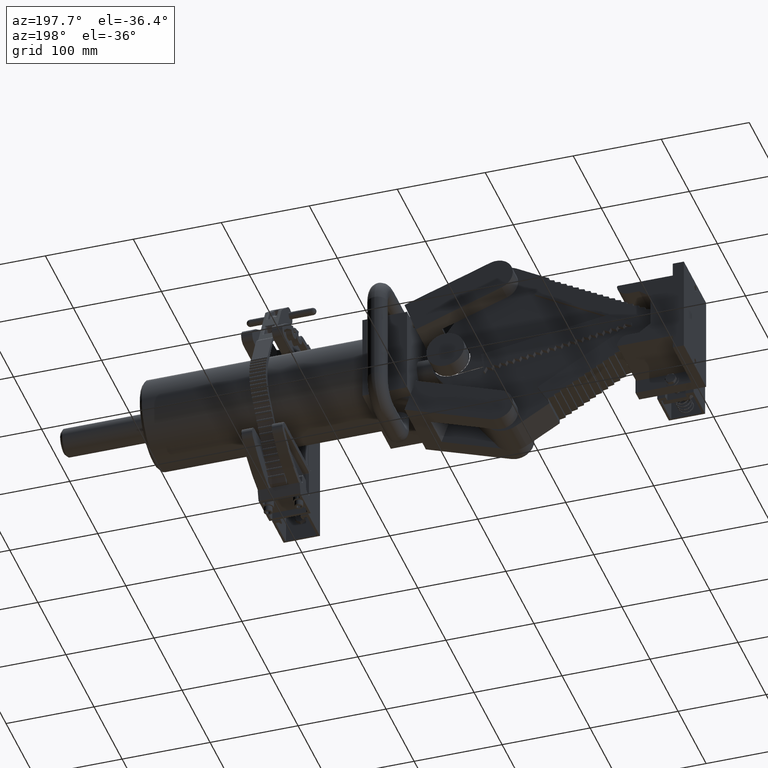
[diagram: clean part render]
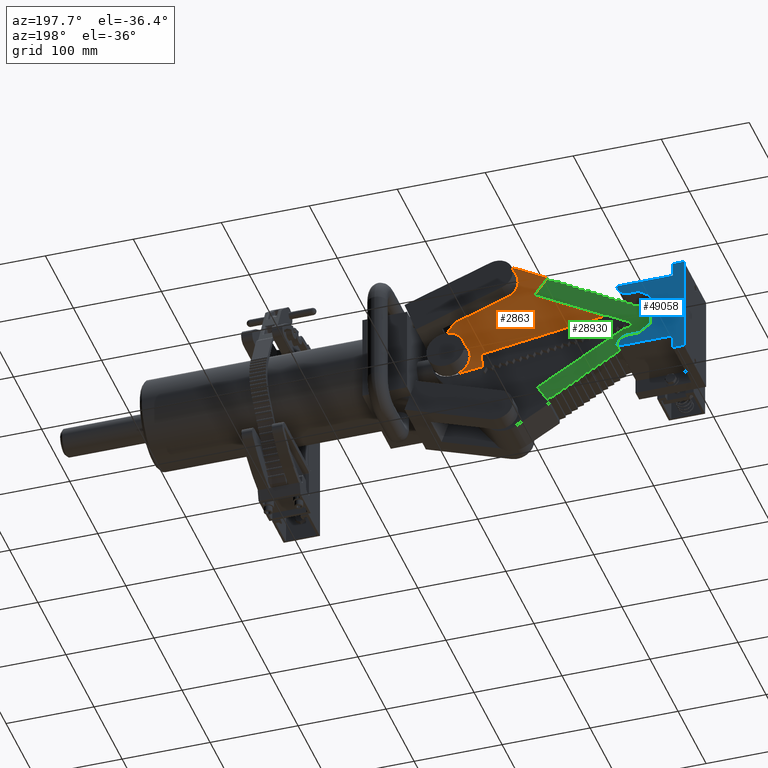
[diagram: same view with three faces highlighted in distinct colors, each labeled with its STEP entity id]
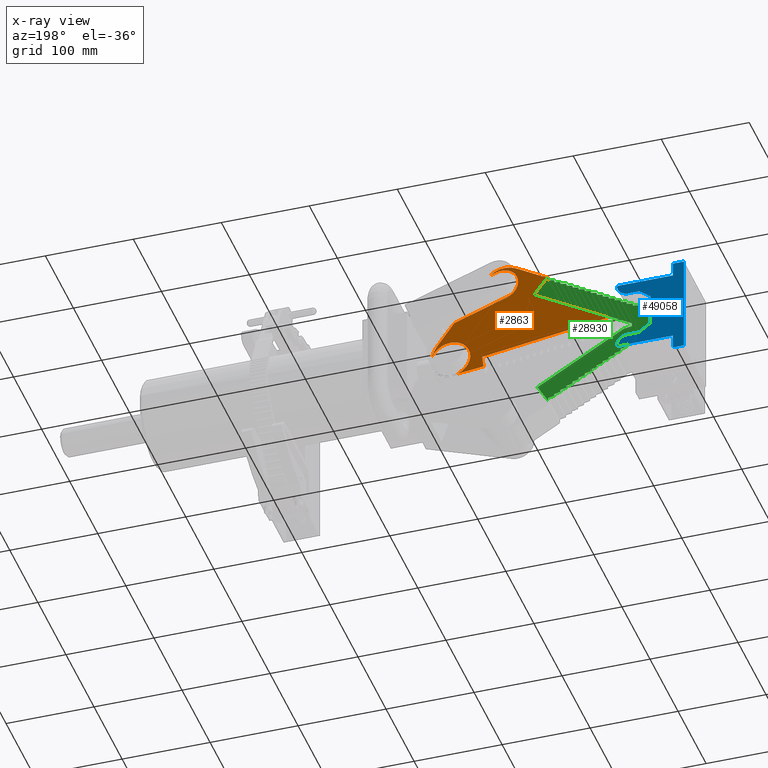
[diagram: x-ray of the same camera — body ghosted, the three highlighted faces saturated]
A machine part, auxiliary view with three faces highlighted in distinct colors.
The next image is the same camera in x-ray (body ghosted, the three faces saturated) — at least one of them is partly hidden behind the body in this view.
Their STEP definitions:

[orange] entity #2863 — the highlighted planar face has unit normal (0, -1, -0).
#180 = DIRECTION ( 'NONE',  ( -0.8091872791519439900, 0.5875508039809610400, -3.073578674068622100E-017 ) ) ;
#699 = CIRCLE ( 'NONE', #22202, 0.8799999999999987800 ) ;
#769 = LINE ( 'NONE', #48381, #42808 ) ;
#1709 = VECTOR ( 'NONE', #31164, 39.37007874015748900 ) ;
#1725 = DIRECTION ( 'NONE',  ( -1.000000000000000000, -2.185478394931410600E-015, 0.0000000000000000000 ) ) ;
#2614 = ORIENTED_EDGE ( 'NONE', *, *, #21556, .F. ) ;
#2863 = ADVANCED_FACE ( 'NONE', ( #18403 ), #10475, .F. ) ;
#3086 = DIRECTION ( 'NONE',  ( 1.000000000000000000, -4.824146399451254100E-015, -3.992478743741997100E-017 ) ) ;
#3712 = ORIENTED_EDGE ( 'NONE', *, *, #28045, .F. ) ;
#4394 = EDGE_CURVE ( 'NONE', #35157, #16521, #38741, .T. ) ;
#5565 = LINE ( 'NONE', #39704, #1709 ) ;
#6990 = VERTEX_POINT ( 'NONE', #32144 ) ;
#7691 = VERTEX_POINT ( 'NONE', #25938 ) ;
#8821 = CARTESIAN_POINT ( 'NONE',  ( 4.053609672597087200, 8.380113203083842800, 0.7499999999999998900 ) ) ;
#9250 = CARTESIAN_POINT ( 'NONE',  ( 1.888629810429850500, 9.982377870384507200, 0.7499999999999998900 ) ) ;
#10475 = PLANE ( 'NONE',  #23959 ) ;
#10930 = CIRCLE ( 'NONE', #26465, 1.499999999999999800 ) ;
#11158 = DIRECTION ( 'NONE',  ( -0.1432702978063842600, 0.9896835967956980600, -1.004700080516468300E-016 ) ) ;
#11436 = ORIENTED_EDGE ( 'NONE', *, *, #17889, .T. ) ;
#11636 = LINE ( 'NONE', #35847, #21188 ) ;
#11814 = VERTEX_POINT ( 'NONE', #44780 ) ;
#12454 = VECTOR ( 'NONE', #47049, 39.37007874015748900 ) ;
#13186 = VECTOR ( 'NONE', #47922, 39.37007874015748900 ) ;
#13210 = ORIENTED_EDGE ( 'NONE', *, *, #22533, .T. ) ;
#13770 = VERTEX_POINT ( 'NONE', #24384 ) ;
#14352 = ORIENTED_EDGE ( 'NONE', *, *, #30057, .F. ) ;
#14483 = DIRECTION ( 'NONE',  ( -3.992478743742037100E-017, -1.072969629702611400E-016, 1.000000000000000000 ) ) ;
#14757 = CARTESIAN_POINT ( 'NONE',  ( -9.522350451123167300E-015, 9.500000000000026600, 0.7499999999999998900 ) ) ;
#15031 = CARTESIAN_POINT ( 'NONE',  ( -0.1813411985530989900, 8.728241942233763600, 0.7499999999999998900 ) ) ;
#15063 = VECTOR ( 'NONE', #11158, 39.37007874015748900 ) ;
#15336 = CARTESIAN_POINT ( 'NONE',  ( -1.109413514259050400, 8.627443595388284000, 0.7499999999999998900 ) ) ;
#15421 = DIRECTION ( 'NONE',  ( -3.992478743742037100E-017, -1.072969629702611400E-016, 1.000000000000000000 ) ) ;
#15599 = LINE ( 'NONE', #49132, #25169 ) ;
#16168 = AXIS2_PLACEMENT_3D ( 'NONE', #38880, #14483, #42983 ) ;
#16260 = EDGE_CURVE ( 'NONE', #34236, #34479, #33605, .T. ) ;
#16442 = CARTESIAN_POINT ( 'NONE',  ( -0.6945272639839555900, 8.672504575496111200, 0.7499999999999998900 ) ) ;
#16450 = ORIENTED_EDGE ( 'NONE', *, *, #4394, .F. ) ;
#16521 = VERTEX_POINT ( 'NONE', #49484 ) ;
#17710 = CARTESIAN_POINT ( 'NONE',  ( 0.8799999999999886800, 10.15000000000002500, 0.7499999999999998900 ) ) ;
#17889 = EDGE_CURVE ( 'NONE', #29571, #24451, #15599, .T. ) ;
#18049 = DIRECTION ( 'NONE',  ( -0.4999999999999995600, -0.8660254037844388200, 1.128842893998744000E-016 ) ) ;
#18313 = VERTEX_POINT ( 'NONE', #49260 ) ;
#18403 = FACE_OUTER_BOUND ( 'NONE', #30003, .T. ) ;
#18594 = VECTOR ( 'NONE', #52716, 39.37007874015748900 ) ;
#19051 = VERTEX_POINT ( 'NONE', #23361 ) ;
#20053 = AXIS2_PLACEMENT_3D ( 'NONE', #39820, #15421, #43907 ) ;
#20166 = LINE ( 'NONE', #30344, #50103 ) ;
#20320 = LINE ( 'NONE', #27517, #32452 ) ;
#21188 = VECTOR ( 'NONE', #52017, 39.37007874015748900 ) ;
#21427 = VERTEX_POINT ( 'NONE', #17710 ) ;
#21556 = EDGE_CURVE ( 'NONE', #18313, #21427, #699, .T. ) ;
#22202 = AXIS2_PLACEMENT_3D ( 'NONE', #47065, #22674, #51140 ) ;
#22533 = EDGE_CURVE ( 'NONE', #32907, #50221, #52550, .T. ) ;
#22566 = DIRECTION ( 'NONE',  ( -3.992478743742037100E-017, -1.072969629702611400E-016, 1.000000000000000000 ) ) ;
#22674 = DIRECTION ( 'NONE',  ( -3.992478743742037100E-017, -1.072969629702611400E-016, 1.000000000000000000 ) ) ;
#22947 = DIRECTION ( 'NONE',  ( -1.000000000000000000, 9.992007221626420700E-016, 3.992478743742038300E-017 ) ) ;
#23290 = LINE ( 'NONE', #38859, #12454 ) ;
#23361 = CARTESIAN_POINT ( 'NONE',  ( 3.315160161513782900, 5.742025834970118800, 0.7499999999999998900 ) ) ;
#23959 = AXIS2_PLACEMENT_3D ( 'NONE', #14757, #47340, #22947 ) ;
#23995 = DIRECTION ( 'NONE',  ( -0.3363163370681793700, 0.9417490756146472700, -8.761945742432328500E-017 ) ) ;
#24185 = CIRCLE ( 'NONE', #20053, 0.8799999999999987800 ) ;
#24384 = CARTESIAN_POINT ( 'NONE',  ( 0.3437664595306129100, 10.96007692307695300, 0.7499999999999998900 ) ) ;
#24451 = VERTEX_POINT ( 'NONE', #42730 ) ;
#24800 = ORIENTED_EDGE ( 'NONE', *, *, #29176, .F. ) ;
#25169 = VECTOR ( 'NONE', #180, 39.37007874015748900 ) ;
#25938 = CARTESIAN_POINT ( 'NONE',  ( 0.6337571622913833500, 3.097699604749351500, 0.7499999999999972200 ) ) ;
#26145 = DIRECTION ( 'NONE',  ( -3.992478743742037100E-017, -1.072969629702611400E-016, 1.000000000000000000 ) ) ;
#26465 = AXIS2_PLACEMENT_3D ( 'NONE', #46965, #22566, #51042 ) ;
#27195 = LINE ( 'NONE', #47848, #15063 ) ;
#27517 = CARTESIAN_POINT ( 'NONE',  ( -2.014142698945007300E-014, 5.742025834970132100, 0.7499999999999972200 ) ) ;
#28045 = EDGE_CURVE ( 'NONE', #29571, #35157, #5565, .T. ) ;
#28181 = ORIENTED_EDGE ( 'NONE', *, *, #50784, .F. ) ;
#28348 = CARTESIAN_POINT ( 'NONE',  ( 2.507063491898777300, 6.342361345769752700, 0.7499999999999998900 ) ) ;
#28787 = ORIENTED_EDGE ( 'NONE', *, *, #36228, .F. ) ;
#29176 = EDGE_CURVE ( 'NONE', #34479, #18313, #23290, .T. ) ;
#29571 = VERTEX_POINT ( 'NONE', #9250 ) ;
#30003 = EDGE_LOOP ( 'NONE', ( #42204, #48786, #42799, #13210, #32183, #16450, #3712, #11436, #33273, #28787, #2614, #24800, #30985, #28181, #14352 ) ) ;
#30057 = EDGE_CURVE ( 'NONE', #11814, #7691, #20166, .T. ) ;
#30344 = CARTESIAN_POINT ( 'NONE',  ( -2.028345034903341700E-015, 1.999999999999996200, 0.7499999999999966700 ) ) ;
#30985 = ORIENTED_EDGE ( 'NONE', *, *, #16260, .F. ) ;
#31164 = DIRECTION ( 'NONE',  ( 0.3363163370681794300, -0.9417490756146472700, 8.761945742432328500E-017 ) ) ;
#32144 = CARTESIAN_POINT ( 'NONE',  ( 3.274294443115402000, 5.742025834970118800, 0.7499999999999998900 ) ) ;
#32183 = ORIENTED_EDGE ( 'NONE', *, *, #46887, .F. ) ;
#32452 = VECTOR ( 'NONE', #3086, 39.37007874015748100 ) ;
#32907 = VERTEX_POINT ( 'NONE', #35571 ) ;
#33273 = ORIENTED_EDGE ( 'NONE', *, *, #33733, .T. ) ;
#33467 = EDGE_CURVE ( 'NONE', #6990, #11814, #51071, .T. ) ;
#33605 = LINE ( 'NONE', #15336, #13186 ) ;
#33733 = EDGE_CURVE ( 'NONE', #24451, #13770, #10930, .T. ) ;
#34236 = VERTEX_POINT ( 'NONE', #15031 ) ;
#34479 = VERTEX_POINT ( 'NONE', #16442 ) ;
#35157 = VERTEX_POINT ( 'NONE', #51052 ) ;
#35571 = CARTESIAN_POINT ( 'NONE',  ( 4.168468943549099100, 7.220000000000026400, 0.7499999999999998900 ) ) ;
#35847 = CARTESIAN_POINT ( 'NONE',  ( -2.994359057806534000E-017, 0.0000000000000000000, 0.7499999999999998900 ) ) ;
#36228 = EDGE_CURVE ( 'NONE', #21427, #13770, #24185, .T. ) ;
#38741 = CIRCLE ( 'NONE', #16168, 0.7499999999999998900 ) ;
#38859 = CARTESIAN_POINT ( 'NONE',  ( 0.02539849083954486000, 2.043991476569663800, 0.7499999999999966700 ) ) ;
#38880 = CARTESIAN_POINT ( 'NONE',  ( 3.438261211599959100, 7.873161452950777000, 0.7499999999999998900 ) ) ;
#39704 = CARTESIAN_POINT ( 'NONE',  ( 2.731949404888973600, 7.620924200149640400, 0.7499999999999998900 ) ) ;
#39820 = CARTESIAN_POINT ( 'NONE',  ( -1.017183092052888200E-014, 10.15000000000002500, 0.7499999999999998900 ) ) ;
#42204 = ORIENTED_EDGE ( 'NONE', *, *, #33467, .F. ) ;
#42730 = CARTESIAN_POINT ( 'NONE',  ( 0.8813262059714289700, 10.71378091872794300, 0.7499999999999998900 ) ) ;
#42799 = ORIENTED_EDGE ( 'NONE', *, *, #46340, .T. ) ;
#42808 = VECTOR ( 'NONE', #23995, 39.37007874015748900 ) ;
#42983 = DIRECTION ( 'NONE',  ( 1.000000000000000000, -1.456985596620940600E-015, 0.0000000000000000000 ) ) ;
#43907 = DIRECTION ( 'NONE',  ( 1.000000000000000000, 0.0000000000000000000, 0.0000000000000000000 ) ) ;
#44780 = CARTESIAN_POINT ( 'NONE',  ( 2.507063491898777300, 6.342361345769752700, 0.7499999999999998900 ) ) ;
#46340 = EDGE_CURVE ( 'NONE', #19051, #32907, #11636, .T. ) ;
#46887 = EDGE_CURVE ( 'NONE', #16521, #50221, #769, .T. ) ;
#46965 = CARTESIAN_POINT ( 'NONE',  ( -9.522350451123167300E-015, 9.500000000000026600, 0.7499999999999998900 ) ) ;
#47049 = DIRECTION ( 'NONE',  ( -0.1079754601226999300, 0.9941535595728111500, -1.023587603743805200E-016 ) ) ;
#47065 = CARTESIAN_POINT ( 'NONE',  ( -1.017183092052888200E-014, 10.15000000000002500, 0.7499999999999998900 ) ) ;
#47340 = DIRECTION ( 'NONE',  ( -3.992478743742027900E-017, 1.072969629702612200E-016, -1.000000000000000000 ) ) ;
#47848 = CARTESIAN_POINT ( 'NONE',  ( -0.1813411985530989900, 8.728241942233763600, 0.7499999999999998900 ) ) ;
#47922 = DIRECTION ( 'NONE',  ( -0.9941535595728113700, -0.1079754601226990700, 5.127680849258156500E-017 ) ) ;
#48381 = CARTESIAN_POINT ( 'NONE',  ( 4.144573018310944200, 8.125398705751912600, 0.7499999999999998900 ) ) ;
#48786 = ORIENTED_EDGE ( 'NONE', *, *, #48868, .T. ) ;
#48868 = EDGE_CURVE ( 'NONE', #6990, #19051, #20320, .T. ) ;
#49132 = CARTESIAN_POINT ( 'NONE',  ( 4.618802153517009400, 8.000000000000028400, 0.7499999999999998900 ) ) ;
#49196 = AXIS2_PLACEMENT_3D ( 'NONE', #50506, #26145, #1725 ) ;
#49260 = CARTESIAN_POINT ( 'NONE',  ( -0.8204320189868201700, 9.831737054903955600, 0.7499999999999998900 ) ) ;
#49484 = CARTESIAN_POINT ( 'NONE',  ( 4.144573018310944200, 8.125398705751910800, 0.7499999999999998900 ) ) ;
#50103 = VECTOR ( 'NONE', #18049, 39.37007874015748900 ) ;
#50221 = VERTEX_POINT ( 'NONE', #8821 ) ;
#50506 = CARTESIAN_POINT ( 'NONE',  ( 3.302443539764661200, 7.720000000000028200, 0.7499999999999998900 ) ) ;
#50784 = EDGE_CURVE ( 'NONE', #7691, #34236, #27195, .T. ) ;
#51042 = DIRECTION ( 'NONE',  ( -1.000000000000000000, 7.284927983104702900E-016, 0.0000000000000000000 ) ) ;
#51052 = CARTESIAN_POINT ( 'NONE',  ( 2.731949404888974100, 7.620924200149640400, 0.7499999999999998900 ) ) ;
#51071 = LINE ( 'NONE', #28348, #18594 ) ;
#51140 = DIRECTION ( 'NONE',  ( 1.000000000000000000, 0.0000000000000000000, 0.0000000000000000000 ) ) ;
#52017 = DIRECTION ( 'NONE',  ( 0.4999999999999995600, 0.8660254037844388200, -1.128842893998744300E-016 ) ) ;
#52550 = CIRCLE ( 'NONE', #49196, 1.000000000000000000 ) ;
#52716 = DIRECTION ( 'NONE',  ( -0.7875578592029506300, 0.6162407146624321300, -3.467767701855438900E-017 ) ) ;

[blue] entity #49058 — the highlighted planar face has unit normal (-0, 1, -0).
#352 = LINE ( 'NONE', #42833, #21995 ) ;
#588 = EDGE_CURVE ( 'NONE', #31125, #40765, #7793, .T. ) ;
#887 = CARTESIAN_POINT ( 'NONE',  ( -1.593750000000003800, 1.433012701892221400, 3.125000000000006700 ) ) ;
#1585 = DIRECTION ( 'NONE',  ( -8.326672684688672800E-017, 1.671616019817200100E-016, -1.000000000000000000 ) ) ;
#2019 = LINE ( 'NONE', #19936, #9051 ) ;
#2042 = DIRECTION ( 'NONE',  ( 1.000000000000000000, 0.0000000000000000000, 0.0000000000000000000 ) ) ;
#2200 = DIRECTION ( 'NONE',  ( 1.000000000000000000, 0.0000000000000000000, 0.0000000000000000000 ) ) ;
#2266 = VECTOR ( 'NONE', #21527, 39.37007874015748100 ) ;
#3173 = ORIENTED_EDGE ( 'NONE', *, *, #44057, .F. ) ;
#3441 = DIRECTION ( 'NONE',  ( 8.326672684688672800E-017, -1.671616019817200100E-016, 1.000000000000000000 ) ) ;
#3548 = DIRECTION ( 'NONE',  ( -4.415231105661795700E-017, -1.000000000000000000, 1.671616019817205000E-016 ) ) ;
#4785 = CARTESIAN_POINT ( 'NONE',  ( -1.093749999999994900, 0.9999999999999992200, 3.125000000000006700 ) ) ;
#5136 = ORIENTED_EDGE ( 'NONE', *, *, #15297, .T. ) ;
#5274 = CARTESIAN_POINT ( 'NONE',  ( 1.593750000000002900, 1.433012701892219200, 3.125000000000006700 ) ) ;
#5884 = DIRECTION ( 'NONE',  ( 6.512160868995288600E-017, -1.000000000000000000, 1.671616019817205000E-016 ) ) ;
#6235 = VERTEX_POINT ( 'NONE', #47869 ) ;
#6742 = LINE ( 'NONE', #32298, #48777 ) ;
#6768 = DIRECTION ( 'NONE',  ( 0.5877852522924751400, 0.8090169943749459000, -8.629362276288651000E-017 ) ) ;
#6784 = EDGE_CURVE ( 'NONE', #50329, #47191, #25646, .T. ) ;
#6843 = CARTESIAN_POINT ( 'NONE',  ( 2.218750000000005800, 1.500000000000000900, 3.125000000000006700 ) ) ;
#6910 = LINE ( 'NONE', #6843, #47676 ) ;
#6925 = CARTESIAN_POINT ( 'NONE',  ( 0.7265425280053649000, 0.0000000000000000000, 3.125000000000006700 ) ) ;
#7073 = AXIS2_PLACEMENT_3D ( 'NONE', #26003, #1585, #30110 ) ;
#7155 = VECTOR ( 'NONE', #6768, 39.37007874015748900 ) ;
#7560 = VERTEX_POINT ( 'NONE', #4785 ) ;
#7793 = CIRCLE ( 'NONE', #17707, 0.06250000000000022200 ) ;
#8435 = DIRECTION ( 'NONE',  ( -8.326672684688670400E-017, -1.671616019817200100E-016, 1.000000000000000000 ) ) ;
#8846 = VERTEX_POINT ( 'NONE', #51013 ) ;
#9051 = VECTOR ( 'NONE', #24041, 39.37007874015748100 ) ;
#9257 = VERTEX_POINT ( 'NONE', #11073 ) ;
#9386 = VECTOR ( 'NONE', #5884, 39.37007874015748100 ) ;
#9506 = VERTEX_POINT ( 'NONE', #16233 ) ;
#10317 = CARTESIAN_POINT ( 'NONE',  ( -1.593750000000003800, 1.499999999999998700, 3.125000000000006700 ) ) ;
#10641 = LINE ( 'NONE', #46475, #9386 ) ;
#10699 = EDGE_CURVE ( 'NONE', #31125, #7560, #15734, .T. ) ;
#10737 = DIRECTION ( 'NONE',  ( -4.690928873219105800E-017, 1.000000000000000000, -1.671616019817204500E-016 ) ) ;
#11073 = CARTESIAN_POINT ( 'NONE',  ( -1.093749999999994900, 0.5054177255153518000, 3.125000000000006700 ) ) ;
#11623 = EDGE_CURVE ( 'NONE', #8846, #11976, #352, .T. ) ;
#11976 = VERTEX_POINT ( 'NONE', #13930 ) ;
#12930 = VECTOR ( 'NONE', #3548, 39.37007874015748100 ) ;
#13061 = VERTEX_POINT ( 'NONE', #34811 ) ;
#13118 = CARTESIAN_POINT ( 'NONE',  ( 1.593750000000003600, -0.9999999999999992200, 3.125000000000006700 ) ) ;
#13653 = EDGE_CURVE ( 'NONE', #7560, #9257, #38422, .T. ) ;
#13930 = CARTESIAN_POINT ( 'NONE',  ( -1.593750000000003600, -0.9999999999999992200, 3.125000000000006700 ) ) ;
#15297 = EDGE_CURVE ( 'NONE', #43560, #47284, #6910, .T. ) ;
#15678 = CIRCLE ( 'NONE', #7073, 0.5000000000000012200 ) ;
#15734 = CIRCLE ( 'NONE', #28662, 0.5000000000000012200 ) ;
#15779 = LINE ( 'NONE', #36308, #45736 ) ;
#16233 = CARTESIAN_POINT ( 'NONE',  ( 1.093750000000012000, 0.5054177255153540200, 3.125000000000006700 ) ) ;
#16311 = ORIENTED_EDGE ( 'NONE', *, *, #42706, .F. ) ;
#16440 = ORIENTED_EDGE ( 'NONE', *, *, #32420, .F. ) ;
#16507 = FACE_OUTER_BOUND ( 'NONE', #36900, .T. ) ;
#17707 = AXIS2_PLACEMENT_3D ( 'NONE', #27863, #3441, #31956 ) ;
#18274 = LINE ( 'NONE', #41031, #37418 ) ;
#18435 = DIRECTION ( 'NONE',  ( 1.000000000000000000, 4.415231105661783300E-017, 8.326672684688671600E-017 ) ) ;
#19033 = ORIENTED_EDGE ( 'NONE', *, *, #33437, .T. ) ;
#19848 = ORIENTED_EDGE ( 'NONE', *, *, #27869, .F. ) ;
#19936 = CARTESIAN_POINT ( 'NONE',  ( -2.218750000000006700, -1.500000000000000900, 3.125000000000006700 ) ) ;
#19957 = VERTEX_POINT ( 'NONE', #13118 ) ;
#20177 = CARTESIAN_POINT ( 'NONE',  ( 0.7265425280053649000, 0.0000000000000000000, 3.125000000000006700 ) ) ;
#20548 = ORIENTED_EDGE ( 'NONE', *, *, #24557, .F. ) ;
#20887 = VECTOR ( 'NONE', #43588, 39.37007874015748100 ) ;
#21137 = ORIENTED_EDGE ( 'NONE', *, *, #42903, .F. ) ;
#21527 = DIRECTION ( 'NONE',  ( 4.690928873219105800E-017, -1.000000000000000000, 1.671616019817204500E-016 ) ) ;
#21995 = VECTOR ( 'NONE', #18435, 39.37007874015748100 ) ;
#23963 = LINE ( 'NONE', #45936, #2266 ) ;
#24041 = DIRECTION ( 'NONE',  ( 1.000000000000000000, 4.415231105661784600E-017, 8.326672684688671600E-017 ) ) ;
#24557 = EDGE_CURVE ( 'NONE', #26266, #9506, #50444, .T. ) ;
#25646 = CIRCLE ( 'NONE', #41835, 0.06250000000000022200 ) ;
#26003 = CARTESIAN_POINT ( 'NONE',  ( 1.593750000000012000, 0.9999999999999992200, 3.125000000000006700 ) ) ;
#26040 = AXIS2_PLACEMENT_3D ( 'NONE', #49002, #8435, #36942 ) ;
#26266 = VERTEX_POINT ( 'NONE', #20177 ) ;
#26468 = DIRECTION ( 'NONE',  ( -8.326672684688672800E-017, 1.671616019817200100E-016, -1.000000000000000000 ) ) ;
#26539 = DIRECTION ( 'NONE',  ( -6.512160868995286200E-017, 1.000000000000000000, -1.671616019817205000E-016 ) ) ;
#26631 = DIRECTION ( 'NONE',  ( 8.326672684688672800E-017, -1.671616019817200100E-016, 1.000000000000000000 ) ) ;
#26911 = ORIENTED_EDGE ( 'NONE', *, *, #43442, .F. ) ;
#26998 = LINE ( 'NONE', #10317, #36561 ) ;
#27345 = ORIENTED_EDGE ( 'NONE', *, *, #10699, .F. ) ;
#27863 = CARTESIAN_POINT ( 'NONE',  ( -1.531250000000003800, 1.433012701892221400, 3.125000000000006700 ) ) ;
#27869 = EDGE_CURVE ( 'NONE', #50329, #19957, #10641, .T. ) ;
#27974 = CARTESIAN_POINT ( 'NONE',  ( -1.093749999999994900, 0.9999999999999992200, 3.125000000000006700 ) ) ;
#28210 = DIRECTION ( 'NONE',  ( -2.320249939742638000E-016, 1.000000000000000000, -1.671616019817205300E-016 ) ) ;
#28662 = AXIS2_PLACEMENT_3D ( 'NONE', #50838, #26468, #2042 ) ;
#28951 = DIRECTION ( 'NONE',  ( 1.000000000000000000, -8.300390469159446900E-016, 8.326672684688686400E-017 ) ) ;
#29261 = ORIENTED_EDGE ( 'NONE', *, *, #52089, .T. ) ;
#30110 = DIRECTION ( 'NONE',  ( 1.000000000000000000, 0.0000000000000000000, 0.0000000000000000000 ) ) ;
#30343 = CARTESIAN_POINT ( 'NONE',  ( 2.218750000000006200, -1.500000000000000900, 3.125000000000006700 ) ) ;
#30393 = CARTESIAN_POINT ( 'NONE',  ( -1.522321428571433700, 1.494871659305394100, 3.125000000000006700 ) ) ;
#31125 = VERTEX_POINT ( 'NONE', #30393 ) ;
#31168 = CARTESIAN_POINT ( 'NONE',  ( 0.7265425280053649000, 0.0000000000000000000, 3.125000000000006700 ) ) ;
#31956 = DIRECTION ( 'NONE',  ( 1.000000000000000000, 0.0000000000000000000, 0.0000000000000000000 ) ) ;
#32298 = CARTESIAN_POINT ( 'NONE',  ( 1.093750000000012000, 0.5054177255153540200, 3.125000000000006700 ) ) ;
#32420 = EDGE_CURVE ( 'NONE', #11976, #40765, #26998, .T. ) ;
#33437 = EDGE_CURVE ( 'NONE', #6235, #43560, #2019, .T. ) ;
#34000 = ORIENTED_EDGE ( 'NONE', *, *, #588, .T. ) ;
#34811 = CARTESIAN_POINT ( 'NONE',  ( -0.7265425280053534600, 0.0000000000000000000, 3.125000000000006700 ) ) ;
#35224 = VERTEX_POINT ( 'NONE', #35777 ) ;
#35777 = CARTESIAN_POINT ( 'NONE',  ( 1.093750000000012000, 0.9999999999999992200, 3.125000000000006700 ) ) ;
#36308 = CARTESIAN_POINT ( 'NONE',  ( -1.093749999999994900, 0.5054177255153518000, 3.125000000000006700 ) ) ;
#36561 = VECTOR ( 'NONE', #26539, 39.37007874015748100 ) ;
#36761 = PLANE ( 'NONE',  #26040 ) ;
#36900 = EDGE_LOOP ( 'NONE', ( #27345, #34000, #16440, #44949, #29261, #19033, #5136, #26911, #19848, #37119, #3173, #46303, #20548, #16311, #21137, #44445 ) ) ;
#36942 = DIRECTION ( 'NONE',  ( 1.000000000000000000, 4.415231105661782700E-017, 8.326672684688671600E-017 ) ) ;
#37119 = ORIENTED_EDGE ( 'NONE', *, *, #6784, .T. ) ;
#37418 = VECTOR ( 'NONE', #28951, 39.37007874015748100 ) ;
#38422 = LINE ( 'NONE', #27974, #12930 ) ;
#40765 = VERTEX_POINT ( 'NONE', #887 ) ;
#41031 = CARTESIAN_POINT ( 'NONE',  ( 2.218750000000006200, -0.9999999999999992200, 3.125000000000006700 ) ) ;
#41295 = LINE ( 'NONE', #6925, #20887 ) ;
#41835 = AXIS2_PLACEMENT_3D ( 'NONE', #50987, #26631, #2200 ) ;
#42706 = EDGE_CURVE ( 'NONE', #13061, #26266, #41295, .T. ) ;
#42833 = CARTESIAN_POINT ( 'NONE',  ( -1.593750000000003600, -0.9999999999999992200, 3.125000000000006700 ) ) ;
#42903 = EDGE_CURVE ( 'NONE', #9257, #13061, #15779, .T. ) ;
#43442 = EDGE_CURVE ( 'NONE', #19957, #47284, #18274, .T. ) ;
#43560 = VERTEX_POINT ( 'NONE', #30343 ) ;
#43588 = DIRECTION ( 'NONE',  ( 1.000000000000000000, 1.666129464388552200E-016, 8.326672684688670400E-017 ) ) ;
#44057 = EDGE_CURVE ( 'NONE', #35224, #47191, #15678, .T. ) ;
#44445 = ORIENTED_EDGE ( 'NONE', *, *, #13653, .F. ) ;
#44838 = DIRECTION ( 'NONE',  ( 0.5877852522924697000, -0.8090169943749498900, 1.841795308574186200E-016 ) ) ;
#44949 = ORIENTED_EDGE ( 'NONE', *, *, #11623, .F. ) ;
#45736 = VECTOR ( 'NONE', #44838, 39.37007874015748100 ) ;
#45936 = CARTESIAN_POINT ( 'NONE',  ( -2.218750000000007100, 1.500000000000000900, 3.125000000000006700 ) ) ;
#46303 = ORIENTED_EDGE ( 'NONE', *, *, #51380, .F. ) ;
#46475 = CARTESIAN_POINT ( 'NONE',  ( 1.593750000000002900, 1.500000000000000900, 3.125000000000006700 ) ) ;
#46768 = CARTESIAN_POINT ( 'NONE',  ( 1.522321428571430200, 1.494871659305392100, 3.125000000000006700 ) ) ;
#47191 = VERTEX_POINT ( 'NONE', #46768 ) ;
#47284 = VERTEX_POINT ( 'NONE', #47835 ) ;
#47676 = VECTOR ( 'NONE', #10737, 39.37007874015748100 ) ;
#47835 = CARTESIAN_POINT ( 'NONE',  ( 2.218750000000006200, -0.9999999999999992200, 3.125000000000006700 ) ) ;
#47869 = CARTESIAN_POINT ( 'NONE',  ( -2.218750000000006700, -1.500000000000000900, 3.125000000000006700 ) ) ;
#48777 = VECTOR ( 'NONE', #28210, 39.37007874015748100 ) ;
#49002 = CARTESIAN_POINT ( 'NONE',  ( -2.218750000000006700, -1.500000000000000900, 3.125000000000006700 ) ) ;
#49058 = ADVANCED_FACE ( 'NONE', ( #16507 ), #36761, .T. ) ;
#50329 = VERTEX_POINT ( 'NONE', #5274 ) ;
#50444 = LINE ( 'NONE', #31168, #7155 ) ;
#50838 = CARTESIAN_POINT ( 'NONE',  ( -1.593749999999994700, 0.9999999999999992200, 3.125000000000006700 ) ) ;
#50987 = CARTESIAN_POINT ( 'NONE',  ( 1.531250000000002900, 1.433012701892219200, 3.125000000000006700 ) ) ;
#51013 = CARTESIAN_POINT ( 'NONE',  ( -2.218750000000006700, -0.9999999999999992200, 3.125000000000006700 ) ) ;
#51380 = EDGE_CURVE ( 'NONE', #9506, #35224, #6742, .T. ) ;
#52089 = EDGE_CURVE ( 'NONE', #8846, #6235, #23963, .T. ) ;

[green] entity #28930 — the highlighted planar face has unit normal (0, -1, -0).
#54 = CARTESIAN_POINT ( 'NONE',  ( 0.4625000000000005200, 1.141265877365272600, 0.8749999999999997800 ) ) ;
#106 = EDGE_CURVE ( 'NONE', #938, #27416, #21811, .T. ) ;
#117 = LINE ( 'NONE', #41507, #20499 ) ;
#147 = CARTESIAN_POINT ( 'NONE',  ( 1.556250000000005000, 3.035696448143729900, 0.8749999999999971100 ) ) ;
#151 = CARTESIAN_POINT ( 'NONE',  ( -2.284649237771403800, 4.118228202874298900, 0.8749999999999971100 ) ) ;
#295 = LINE ( 'NONE', #44637, #20676 ) ;
#377 = CARTESIAN_POINT ( 'NONE',  ( -1.347149237771396900, 2.494430570778456400, 0.8749999999999965600 ) ) ;
#450 = VERTEX_POINT ( 'NONE', #9700 ) ;
#494 = LINE ( 'NONE', #49891, #33014 ) ;
#563 = LINE ( 'NONE', #21573, #42596 ) ;
#693 = ORIENTED_EDGE ( 'NONE', *, *, #13822, .T. ) ;
#716 = LINE ( 'NONE', #16671, #11535 ) ;
#913 = VECTOR ( 'NONE', #42283, 39.37007874015748100 ) ;
#938 = VERTEX_POINT ( 'NONE', #17662 ) ;
#940 = ORIENTED_EDGE ( 'NONE', *, *, #24274, .F. ) ;
#959 = VERTEX_POINT ( 'NONE', #39001 ) ;
#1098 = CARTESIAN_POINT ( 'NONE',  ( 0.7750000000000020200, 1.682531754730546100, 0.8749999999999997800 ) ) ;
#1144 = CARTESIAN_POINT ( 'NONE',  ( 2.025000000000007900, 3.847595264191664200, 0.8749999999999971100 ) ) ;
#1160 = DIRECTION ( 'NONE',  ( -1.000000000000000000, 4.824146399451253300E-015, 3.992478743741996400E-017 ) ) ;
#1248 = CARTESIAN_POINT ( 'NONE',  ( -2.033335633333019800E-015, 1.999999999999996200, 0.8749999999999965600 ) ) ;
#1258 = DIRECTION ( 'NONE',  ( -1.000000000000000000, 4.824146399451253300E-015, 3.992478743741996400E-017 ) ) ;
#1329 = CARTESIAN_POINT ( 'NONE',  ( -0.6187500000000040200, 1.411898816047909300, 0.8749999999999997800 ) ) ;
#1394 = DIRECTION ( 'NONE',  ( 0.1916652432460900200, -0.9814603581049093900, 9.765552160461985800E-017 ) ) ;
#1474 = LINE ( 'NONE', #1144, #32733 ) ;
#1608 = ORIENTED_EDGE ( 'NONE', *, *, #38943, .T. ) ;
#1732 = CARTESIAN_POINT ( 'NONE',  ( 2.237108285620075700, 3.874785212727276800, 0.8749999999999971100 ) ) ;
#1754 = CARTESIAN_POINT ( 'NONE',  ( -0.7750000000000048000, 1.682531754730546100, 0.8749999999999997800 ) ) ;
#1756 = CARTESIAN_POINT ( 'NONE',  ( 2.128399237771395800, 3.847595264191664200, 0.8749999999999971100 ) ) ;
#1777 = DIRECTION ( 'NONE',  ( 0.1916652432460900200, -0.9814603581049093900, 9.765552160461985800E-017 ) ) ;
#1800 = LINE ( 'NONE', #9601, #31785 ) ;
#1825 = ORIENTED_EDGE ( 'NONE', *, *, #42681, .T. ) ;
#1864 = CARTESIAN_POINT ( 'NONE',  ( -1.087500000000007200, 2.223797632095819500, 0.8749999999999965600 ) ) ;
#2360 = VECTOR ( 'NONE', #46813, 39.37007874015748900 ) ;
#2491 = VERTEX_POINT ( 'NONE', #30973 ) ;
#2507 = ORIENTED_EDGE ( 'NONE', *, *, #34335, .F. ) ;
#2559 = CARTESIAN_POINT ( 'NONE',  ( -1.034649237771393800, 1.953164693413182800, 0.8749999999999965600 ) ) ;
#2655 = VERTEX_POINT ( 'NONE', #41867 ) ;
#2824 = DIRECTION ( 'NONE',  ( -1.000000000000000000, 4.824146399451253300E-015, 3.992478743741996400E-017 ) ) ;
#2952 = LINE ( 'NONE', #23517, #43738 ) ;
#2968 = EDGE_CURVE ( 'NONE', #6985, #43407, #5048, .T. ) ;
#3053 = CARTESIAN_POINT ( 'NONE',  ( -2.237108285620080600, 3.874785212727281300, 0.8749999999999971100 ) ) ;
#3125 = ORIENTED_EDGE ( 'NONE', *, *, #25832, .T. ) ;
#3277 = CARTESIAN_POINT ( 'NONE',  ( -0.4625000000000028000, 1.141265877365272600, 0.8749999999999997800 ) ) ;
#3366 = CARTESIAN_POINT ( 'NONE',  ( -2.597149237771406900, 4.659494080239571900, 0.8749999999999971100 ) ) ;
#3372 = EDGE_CURVE ( 'NONE', #13503, #4457, #52120, .T. ) ;
#3388 = ORIENTED_EDGE ( 'NONE', *, *, #48438, .F. ) ;
#3480 = VECTOR ( 'NONE', #29233, 39.37007874015748100 ) ;
#3506 = ORIENTED_EDGE ( 'NONE', *, *, #6860, .F. ) ;
#3540 = VERTEX_POINT ( 'NONE', #2559 ) ;
#3566 = ORIENTED_EDGE ( 'NONE', *, *, #41027, .T. ) ;
#3617 = LINE ( 'NONE', #30577, #23999 ) ;
#3631 = CARTESIAN_POINT ( 'NONE',  ( 1.503399237771392300, 2.765063509461092900, 0.8749999999999971100 ) ) ;
#3666 = EDGE_CURVE ( 'NONE', #7939, #38488, #43190, .T. ) ;
#3708 = CARTESIAN_POINT ( 'NONE',  ( -0.4096492377713897300, 0.8706329386826358000, 0.8749999999999997800 ) ) ;
#3782 = CARTESIAN_POINT ( 'NONE',  ( -0.1500000000000020200, 1.999999999999998400, 0.8749999999999965600 ) ) ;
#3900 = ORIENTED_EDGE ( 'NONE', *, *, #42588, .F. ) ;
#4146 = VERTEX_POINT ( 'NONE', #13261 ) ;
#4179 = LINE ( 'NONE', #14285, #25853 ) ;
#4222 = CARTESIAN_POINT ( 'NONE',  ( 2.440899237771396300, 4.388861141556937200, 0.8749999999999971100 ) ) ;
#4330 = VECTOR ( 'NONE', #50516, 39.37007874015748100 ) ;
#4457 = VERTEX_POINT ( 'NONE', #10730 ) ;
#4805 = ORIENTED_EDGE ( 'NONE', *, *, #38486, .T. ) ;
#4862 = ORIENTED_EDGE ( 'NONE', *, *, #24583, .F. ) ;
#4942 = ORIENTED_EDGE ( 'NONE', *, *, #31106, .T. ) ;
#4990 = CARTESIAN_POINT ( 'NONE',  ( -2.650000000000022100, 4.930127018922211100, 0.8749999999999971100 ) ) ;
#5048 = LINE ( 'NONE', #51957, #45811 ) ;
#5217 = CARTESIAN_POINT ( 'NONE',  ( 2.806250000000005200, 5.200759957604845800, 0.8749999999999971100 ) ) ;
#5239 = DIRECTION ( 'NONE',  ( 0.1432702978063847300, -0.9896835967956980600, 1.004700080516468000E-016 ) ) ;
#5251 = DIRECTION ( 'NONE',  ( -1.000000000000000000, 4.824146399451253300E-015, 3.992478743741996400E-017 ) ) ;
#5270 = LINE ( 'NONE', #9093, #47297 ) ;
#5393 = DIRECTION ( 'NONE',  ( -0.1916652432460881100, -0.9814603581049097200, 1.129599097961030800E-016 ) ) ;
#5476 = LINE ( 'NONE', #12330, #47503 ) ;
#5517 = ORIENTED_EDGE ( 'NONE', *, *, #35601, .F. ) ;
#5810 = CARTESIAN_POINT ( 'NONE',  ( -2.909649237771411400, 5.200759957604845800, 0.8749999999999971100 ) ) ;
#5854 = DIRECTION ( 'NONE',  ( -0.1916652432460881100, -0.9814603581049097200, 1.129599097961030800E-016 ) ) ;
#5951 = EDGE_CURVE ( 'NONE', #30069, #49379, #33928, .T. ) ;
#6090 = ORIENTED_EDGE ( 'NONE', *, *, #10775, .F. ) ;
#6104 = CARTESIAN_POINT ( 'NONE',  ( 2.181250000000007000, 4.118228202874298900, 0.8749999999999971100 ) ) ;
#6170 = VECTOR ( 'NONE', #30237, 39.37007874015748900 ) ;
#6185 = LINE ( 'NONE', #20463, #48229 ) ;
#6329 = EDGE_CURVE ( 'NONE', #11530, #25909, #51034, .T. ) ;
#6337 = CARTESIAN_POINT ( 'NONE',  ( 3.018358285620073500, 5.227949906140462800, 0.8749999999999992200 ) ) ;
#6345 = ORIENTED_EDGE ( 'NONE', *, *, #29143, .T. ) ;
#6519 = CARTESIAN_POINT ( 'NONE',  ( -3.302443539764673200, 5.719999999999994400, 0.8749999999999971100 ) ) ;
#6600 = ORIENTED_EDGE ( 'NONE', *, *, #23669, .F. ) ;
#6619 = VERTEX_POINT ( 'NONE', #37710 ) ;
#6685 = DIRECTION ( 'NONE',  ( 1.000000000000000000, -9.992007221626420700E-016, -3.992478743742038300E-017 ) ) ;
#6734 = CARTESIAN_POINT ( 'NONE',  ( -2.181250000000015500, 4.118228202874298900, 0.8749999999999971100 ) ) ;
#6764 = CARTESIAN_POINT ( 'NONE',  ( 2.650000000000004400, 4.930127018922211100, 0.8749999999999971100 ) ) ;
#6860 = EDGE_CURVE ( 'NONE', #9869, #48688, #42182, .T. ) ;
#6930 = VECTOR ( 'NONE', #18825, 39.37007874015748100 ) ;
#6949 = CARTESIAN_POINT ( 'NONE',  ( -0.8783992377713928400, 1.682531754730546100, 0.8749999999999997800 ) ) ;
#6985 = VERTEX_POINT ( 'NONE', #3631 ) ;
#7030 = LINE ( 'NONE', #7827, #19127 ) ;
#7084 = CARTESIAN_POINT ( 'NONE',  ( 2.909649237771394100, 5.200759957604845800, 0.8749999999999992200 ) ) ;
#7146 = ORIENTED_EDGE ( 'NONE', *, *, #35814, .T. ) ;
#7343 = CARTESIAN_POINT ( 'NONE',  ( 3.274294443115402000, 5.742025834970118800, 0.8749999999999992200 ) ) ;
#7376 = CARTESIAN_POINT ( 'NONE',  ( -0.2533992377713887900, 0.5999999999999990900, 0.8749999999999997800 ) ) ;
#7383 = VERTEX_POINT ( 'NONE', #24006 ) ;
#7603 = EDGE_CURVE ( 'NONE', #52620, #23464, #45338, .T. ) ;
#7644 = ORIENTED_EDGE ( 'NONE', *, *, #51072, .T. ) ;
#7730 = DIRECTION ( 'NONE',  ( 1.000000000000000000, 2.825744955125971600E-015, -3.992478743742079000E-017 ) ) ;
#7794 = VECTOR ( 'NONE', #51771, 39.37007874015748100 ) ;
#7803 = VECTOR ( 'NONE', #47327, 39.37007874015748900 ) ;
#7827 = CARTESIAN_POINT ( 'NONE',  ( -2.862108285620090300, 4.957316967457828100, 0.8749999999999971100 ) ) ;
#7838 = EDGE_CURVE ( 'NONE', #18423, #24407, #15991, .T. ) ;
#7889 = DIRECTION ( 'NONE',  ( -1.000000000000000000, 4.824146399451253300E-015, 3.992478743741996400E-017 ) ) ;
#7936 = VECTOR ( 'NONE', #7889, 39.37007874015748100 ) ;
#7939 = VERTEX_POINT ( 'NONE', #52256 ) ;
#8015 = LINE ( 'NONE', #42214, #17574 ) ;
#8035 = VECTOR ( 'NONE', #13860, 39.37007874015748100 ) ;
#8108 = PLANE ( 'NONE',  #15985 ) ;
#8135 = EDGE_CURVE ( 'NONE', #32614, #36007, #26152, .T. ) ;
#8191 = CARTESIAN_POINT ( 'NONE',  ( -0.5658992377713909500, 1.141265877365272600, 0.8749999999999997800 ) ) ;
#8298 = ORIENTED_EDGE ( 'NONE', *, *, #27999, .F. ) ;
#8445 = CARTESIAN_POINT ( 'NONE',  ( 0.9871082856200699100, 1.709721703266163100, 0.8749999999999997800 ) ) ;
#8526 = ORIENTED_EDGE ( 'NONE', *, *, #30495, .T. ) ;
#8525 = EDGE_CURVE ( 'NONE', #16087, #43352, #14429, .T. ) ;
#8728 = ORIENTED_EDGE ( 'NONE', *, *, #3372, .F. ) ;
#8851 = CARTESIAN_POINT ( 'NONE',  ( -0.9871082856200724700, 1.709721703266163100, 0.8749999999999997800 ) ) ;
#9093 = CARTESIAN_POINT ( 'NONE',  ( 0.6746082856200688000, 1.168455825900889700, 0.8749999999999997800 ) ) ;
#9188 = CARTESIAN_POINT ( 'NONE',  ( 0.4096492377713881700, 0.8706329386826358000, 0.8749999999999997800 ) ) ;
#9247 = CARTESIAN_POINT ( 'NONE',  ( -0.1500000000000006100, 0.5999999999999990900, 0.8749999999999997800 ) ) ;
#9264 = EDGE_CURVE ( 'NONE', #41453, #52515, #27348, .T. ) ;
#9337 = ORIENTED_EDGE ( 'NONE', *, *, #43418, .F. ) ;
#9565 = VERTEX_POINT ( 'NONE', #9776 ) ;
#9601 = CARTESIAN_POINT ( 'NONE',  ( -1.299608285620074100, 2.250987580631436600, 0.8749999999999965600 ) ) ;
#9696 = VERTEX_POINT ( 'NONE', #15009 ) ;
#9700 = CARTESIAN_POINT ( 'NONE',  ( 0.6187500000000011300, 1.411898816047909300, 0.8749999999999997800 ) ) ;
#9776 = CARTESIAN_POINT ( 'NONE',  ( 2.025000000000007900, 3.847595264191664200, 0.8749999999999971100 ) ) ;
#9842 = ORIENTED_EDGE ( 'NONE', *, *, #34491, .T. ) ;
#9869 = VERTEX_POINT ( 'NONE', #3782 ) ;
#9922 = DIRECTION ( 'NONE',  ( 1.000000000000000000, 2.825744955125971600E-015, -3.992478743742079000E-017 ) ) ;
#9980 = DIRECTION ( 'NONE',  ( 0.1916652432460900200, -0.9814603581049093900, 9.765552160461985800E-017 ) ) ;
#10018 = CARTESIAN_POINT ( 'NONE',  ( -2.440899237771404700, 4.388861141556937200, 0.8749999999999971100 ) ) ;
#10179 = EDGE_CURVE ( 'NONE', #35198, #30375, #13218, .T. ) ;
#10252 = DIRECTION ( 'NONE',  ( 0.1916652432460900200, -0.9814603581049093900, 9.765552160461985800E-017 ) ) ;
#10334 = VERTEX_POINT ( 'NONE', #44150 ) ;
#10472 = ORIENTED_EDGE ( 'NONE', *, *, #33668, .T. ) ;
#10507 = VECTOR ( 'NONE', #26286, 39.37007874015748100 ) ;
#10562 = LINE ( 'NONE', #1248, #52633 ) ;
#10620 = VERTEX_POINT ( 'NONE', #22008 ) ;
#10629 = EDGE_CURVE ( 'NONE', #7383, #32614, #27864, .T. ) ;
#10645 = ORIENTED_EDGE ( 'NONE', *, *, #52519, .F. ) ;
#10730 = CARTESIAN_POINT ( 'NONE',  ( 1.868750000000006600, 3.576962325509016600, 0.8749999999999971100 ) ) ;
#10743 = EDGE_CURVE ( 'NONE', #38718, #38617, #3617, .T. ) ;
#10775 = EDGE_CURVE ( 'NONE', #20439, #49347, #44406, .T. ) ;
#10982 = VECTOR ( 'NONE', #38205, 39.37007874015748100 ) ;
#11031 = VECTOR ( 'NONE', #23497, 39.37007874015748900 ) ;
#11128 = DIRECTION ( 'NONE',  ( -0.5000000000000002200, 0.8660254037844386000, -7.295950196245386900E-017 ) ) ;
#11170 = CARTESIAN_POINT ( 'NONE',  ( -1.868750000000012100, 3.576962325509016600, 0.8749999999999971100 ) ) ;
#11181 = DIRECTION ( 'NONE',  ( 0.1916652432460900200, -0.9814603581049093900, 9.765552160461985800E-017 ) ) ;
#11182 = CARTESIAN_POINT ( 'NONE',  ( -1.087500000000007200, 2.223797632095819500, 0.8749999999999965600 ) ) ;
#11290 = EDGE_CURVE ( 'NONE', #12478, #22637, #34800, .T. ) ;
#11457 = DIRECTION ( 'NONE',  ( -0.1916652432460881100, -0.9814603581049097200, 1.129599097961030800E-016 ) ) ;
#11530 = VERTEX_POINT ( 'NONE', #25934 ) ;
#11535 = VECTOR ( 'NONE', #41058, 39.37007874015748900 ) ;
#11612 = LINE ( 'NONE', #47969, #30737 ) ;
#11629 = CARTESIAN_POINT ( 'NONE',  ( -0.3062500000000016300, 0.8706329386826358000, 0.8749999999999997800 ) ) ;
#11707 = ORIENTED_EDGE ( 'NONE', *, *, #7838, .T. ) ;
#11823 = CARTESIAN_POINT ( 'NONE',  ( 1.400000000000003900, 2.765063509461092900, 0.8749999999999971100 ) ) ;
#11881 = CARTESIAN_POINT ( 'NONE',  ( 0.3621082856200670300, 0.6271899485356161600, 0.8749999999999997800 ) ) ;
#11972 = CARTESIAN_POINT ( 'NONE',  ( 0.6187500000000011300, 1.411898816047909300, 0.8749999999999997800 ) ) ;
#11975 = VECTOR ( 'NONE', #15217, 39.37007874015748100 ) ;
#12048 = DIRECTION ( 'NONE',  ( -1.000000000000000000, 4.824146399451253300E-015, 3.992478743741996400E-017 ) ) ;
#12244 = CARTESIAN_POINT ( 'NONE',  ( 0.1499999999999993800, 0.5999999999999990900, 0.8749999999999997800 ) ) ;
#12330 = CARTESIAN_POINT ( 'NONE',  ( 2.393358285620075200, 4.145418151409916000, 0.8749999999999971100 ) ) ;
#12397 = ORIENTED_EDGE ( 'NONE', *, *, #45369, .F. ) ;
#12478 = VERTEX_POINT ( 'NONE', #13999 ) ;
#12633 = VERTEX_POINT ( 'NONE', #18976 ) ;
#12665 = VECTOR ( 'NONE', #39587, 39.37007874015748100 ) ;
#12676 = LINE ( 'NONE', #54, #23509 ) ;
#12797 = CARTESIAN_POINT ( 'NONE',  ( -3.018358285620091700, 5.227949906140462800, 0.8749999999999971100 ) ) ;
#12815 = CARTESIAN_POINT ( 'NONE',  ( 1.087500000000003000, 2.223797632095819500, 0.8749999999999971100 ) ) ;
#12857 = CARTESIAN_POINT ( 'NONE',  ( 1.972149237771395200, 3.576962325509016600, 0.8749999999999971100 ) ) ;
#13123 = VECTOR ( 'NONE', #49090, 39.37007874015748100 ) ;
#13218 = LINE ( 'NONE', #30637, #2360 ) ;
#13248 = VERTEX_POINT ( 'NONE', #7376 ) ;
#13261 = CARTESIAN_POINT ( 'NONE',  ( 0.04960828562006595900, 0.08592407117034271700, 0.8749999999999997800 ) ) ;
#13435 = DIRECTION ( 'NONE',  ( -0.1916652432460881100, -0.9814603581049097200, 1.129599097961030800E-016 ) ) ;
#13503 = VERTEX_POINT ( 'NONE', #12857 ) ;
#13553 = VERTEX_POINT ( 'NONE', #5217 ) ;
#13696 = ORIENTED_EDGE ( 'NONE', *, *, #9264, .T. ) ;
#13713 = DIRECTION ( 'NONE',  ( 0.1916652432460900200, -0.9814603581049093900, 9.765552160461985800E-017 ) ) ;
#13754 = CARTESIAN_POINT ( 'NONE',  ( 0.04960828562006595900, 0.08592407117034271700, 0.8749999999999997800 ) ) ;
#13766 = ORIENTED_EDGE ( 'NONE', *, *, #19049, .T. ) ;
#13822 = EDGE_CURVE ( 'NONE', #49302, #12633, #18632, .T. ) ;
#13827 = CARTESIAN_POINT ( 'NONE',  ( -2.549608285620085500, 4.416051090092550700, 0.8749999999999971100 ) ) ;
#13860 = DIRECTION ( 'NONE',  ( 1.000000000000000000, 2.825744955125971600E-015, -3.992478743742079000E-017 ) ) ;
#13877 = LINE ( 'NONE', #6734, #42546 ) ;
#13999 = CARTESIAN_POINT ( 'NONE',  ( 1.659649237771393200, 3.035696448143729900, 0.8749999999999971100 ) ) ;
#14233 = CARTESIAN_POINT ( 'NONE',  ( 2.284649237771394900, 4.118228202874298900, 0.8749999999999971100 ) ) ;
#14285 = CARTESIAN_POINT ( 'NONE',  ( -1.556250000000010600, 3.035696448143729900, 0.8749999999999971100 ) ) ;
#14331 = CARTESIAN_POINT ( 'NONE',  ( 0.3062500000000000200, 0.8706329386826358000, 0.8749999999999997800 ) ) ;
#14429 = LINE ( 'NONE', #47574, #31222 ) ;
#14676 = VECTOR ( 'NONE', #43088, 39.37007874015748900 ) ;
#14773 = LINE ( 'NONE', #48832, #35190 ) ;
#14780 = EDGE_CURVE ( 'NONE', #14890, #11530, #12676, .T. ) ;
#14838 = ORIENTED_EDGE ( 'NONE', *, *, #8135, .T. ) ;
#14890 = VERTEX_POINT ( 'NONE', #33015 ) ;
#14903 = CARTESIAN_POINT ( 'NONE',  ( 2.753399237771392700, 4.930127018922211100, 0.8749999999999971100 ) ) ;
#14919 = ORIENTED_EDGE ( 'NONE', *, *, #7603, .F. ) ;
#15009 = CARTESIAN_POINT ( 'NONE',  ( -0.9312500000000056800, 1.953164693413182800, 0.8749999999999965600 ) ) ;
#15108 = LINE ( 'NONE', #6764, #46329 ) ;
#15181 = VERTEX_POINT ( 'NONE', #50802 ) ;
#15210 = VECTOR ( 'NONE', #21380, 39.37007874015748900 ) ;
#15217 = DIRECTION ( 'NONE',  ( -1.000000000000000000, 4.824146399451253300E-015, 3.992478743741996400E-017 ) ) ;
#15286 = DIRECTION ( 'NONE',  ( -1.000000000000000000, 4.824146399451253300E-015, 3.992478743741996400E-017 ) ) ;
#15321 = VECTOR ( 'NONE', #49207, 39.37007874015748100 ) ;
#15323 = EDGE_CURVE ( 'NONE', #35519, #10620, #36878, .T. ) ;
#15330 = DIRECTION ( 'NONE',  ( -0.1916652432460881100, -0.9814603581049097200, 1.129599097961030800E-016 ) ) ;
#15373 = VECTOR ( 'NONE', #16483, 39.37007874015748900 ) ;
#15502 = ORIENTED_EDGE ( 'NONE', *, *, #39474, .T. ) ;
#15683 = VECTOR ( 'NONE', #18242, 39.37007874015748100 ) ;
#15694 = ORIENTED_EDGE ( 'NONE', *, *, #47419, .T. ) ;
#15695 = VECTOR ( 'NONE', #37099, 39.37007874015748100 ) ;
#15706 = EDGE_CURVE ( 'NONE', #39776, #938, #32371, .T. ) ;
#15788 = VERTEX_POINT ( 'NONE', #31002 ) ;
#15902 = ORIENTED_EDGE ( 'NONE', *, *, #28645, .T. ) ;
#15985 = AXIS2_PLACEMENT_3D ( 'NONE', #36612, #40699, #16290 ) ;
#15991 = LINE ( 'NONE', #35557, #17280 ) ;
#16032 = ORIENTED_EDGE ( 'NONE', *, *, #46519, .T. ) ;
#16087 = VERTEX_POINT ( 'NONE', #8191 ) ;
#16111 = EDGE_CURVE ( 'NONE', #37068, #4146, #6185, .T. ) ;
#16290 = DIRECTION ( 'NONE',  ( -1.000000000000000000, 9.992007221626420700E-016, 3.992478743742038300E-017 ) ) ;
#16341 = DIRECTION ( 'NONE',  ( -1.000000000000000000, 4.824146399451253300E-015, 3.992478743741996400E-017 ) ) ;
#16366 = CARTESIAN_POINT ( 'NONE',  ( 2.962500000000006600, 5.471392896287484900, 0.8749999999999992200 ) ) ;
#16433 = DIRECTION ( 'NONE',  ( -0.1916652432460881100, -0.9814603581049097200, 1.129599097961030800E-016 ) ) ;
#16483 = DIRECTION ( 'NONE',  ( -0.1916652432460881100, -0.9814603581049097200, 1.129599097961030800E-016 ) ) ;
#16552 = DIRECTION ( 'NONE',  ( 0.5000000000000012200, 0.8660254037844379300, -1.128842893998744000E-016 ) ) ;
#16651 = CARTESIAN_POINT ( 'NONE',  ( 1.924608285620073900, 3.333519335361981600, 0.8749999999999971100 ) ) ;
#16671 = CARTESIAN_POINT ( 'NONE',  ( -1.612108285620077500, 2.792253457996710000, 0.8749999999999965600 ) ) ;
#16712 = VECTOR ( 'NONE', #2824, 39.37007874015748100 ) ;
#16944 = CARTESIAN_POINT ( 'NONE',  ( -1.868750000000012100, 3.576962325509016600, 0.8749999999999971100 ) ) ;
#16968 = VECTOR ( 'NONE', #45787, 39.37007874015748900 ) ;
#17026 = VECTOR ( 'NONE', #36958, 39.37007874015748900 ) ;
#17154 = CARTESIAN_POINT ( 'NONE',  ( -3.264293674517286400, 5.742025834970118800, 0.8749999999999971100 ) ) ;
#17280 = VECTOR ( 'NONE', #11128, 39.37007874015747400 ) ;
#17392 = VECTOR ( 'NONE', #37056, 39.37007874015748900 ) ;
#17537 = ORIENTED_EDGE ( 'NONE', *, *, #52177, .T. ) ;
#17565 = CARTESIAN_POINT ( 'NONE',  ( -2.753399237771411400, 4.930127018922211100, 0.8749999999999971100 ) ) ;
#17574 = VECTOR ( 'NONE', #13713, 39.37007874015748900 ) ;
#17662 = CARTESIAN_POINT ( 'NONE',  ( -0.7221492377713921700, 1.411898816047909300, 0.8749999999999997800 ) ) ;
#17945 = CARTESIAN_POINT ( 'NONE',  ( -1.400000000000009700, 2.765063509461092900, 0.8749999999999965600 ) ) ;
#17963 = CARTESIAN_POINT ( 'NONE',  ( -0.9312500000000056800, 1.953164693413182800, 0.8749999999999965600 ) ) ;
#17972 = EDGE_CURVE ( 'NONE', #2655, #24256, #34706, .T. ) ;
#18065 = CARTESIAN_POINT ( 'NONE',  ( -2.025000000000012800, 3.847595264191664200, 0.8749999999999971100 ) ) ;
#18185 = CARTESIAN_POINT ( 'NONE',  ( -0.3621082856200684700, 0.6271899485356161600, 0.8749999999999997800 ) ) ;
#18227 = ORIENTED_EDGE ( 'NONE', *, *, #2968, .F. ) ;
#18242 = DIRECTION ( 'NONE',  ( 1.000000000000000000, 2.825744955125971600E-015, -3.992478743742079000E-017 ) ) ;
#18423 = VERTEX_POINT ( 'NONE', #26645 ) ;
#18472 = VECTOR ( 'NONE', #21336, 39.37007874015748100 ) ;
#18532 = EDGE_LOOP ( 'NONE', ( #41842, #51196, #43779, #22762, #30518, #30648, #48092, #42088, #43337, #18810, #45946, #940, #26144, #10645, #3388, #9337, #20834, #28588, #46522, #12397, #18227, #44205, #48076, #52275, #39775, #2507, #8728, #23117, #26505, #28467, #46992, #3900, #41691, #47500, #51805, #14919, #8298, #6600, #52192, #5517, #21177, #6090, #4862, #22106, #693, #8526, #3506, #31319, #11707, #15902, #15502, #43338, #3566, #7146, #13696, #24571, #20165, #19125, #14838, #9842, #33545, #13766, #1825, #46953, #7644, #1608, #16032, #10472, #41747, #15694, #6345, #44135, #48670, #30844, #52602, #31134, #4942, #3125, #17537, #22334, #39787, #25592, #43136, #33106, #30088, #45490, #38454, #4805, #46226 ) ) ;
#18605 = LINE ( 'NONE', #43244, #7803 ) ;
#18632 = LINE ( 'NONE', #24748, #17392 ) ;
#18637 = CARTESIAN_POINT ( 'NONE',  ( 1.556250000000005000, 3.035696448143729900, 0.8749999999999971100 ) ) ;
#18641 = EDGE_CURVE ( 'NONE', #27416, #16087, #51185, .T. ) ;
#18669 = VECTOR ( 'NONE', #13435, 39.37007874015748900 ) ;
#18697 = VECTOR ( 'NONE', #48327, 39.37007874015748900 ) ;
#18714 = EDGE_CURVE ( 'NONE', #9565, #13503, #36566, .T. ) ;
#18728 = VECTOR ( 'NONE', #49625, 39.37007874015748900 ) ;
#18746 = LINE ( 'NONE', #11972, #7936 ) ;
#18799 = EDGE_CURVE ( 'NONE', #44088, #9565, #1474, .T. ) ;
#18810 = ORIENTED_EDGE ( 'NONE', *, *, #44003, .F. ) ;
#18825 = DIRECTION ( 'NONE',  ( 1.000000000000000000, 2.825744955125971600E-015, -3.992478743742079000E-017 ) ) ;
#18839 = VECTOR ( 'NONE', #7730, 39.37007874015748100 ) ;
#18852 = LINE ( 'NONE', #17963, #8035 ) ;
#18899 = CARTESIAN_POINT ( 'NONE',  ( -0.6187500000000040200, 1.411898816047909300, 0.8749999999999997800 ) ) ;
#18976 = CARTESIAN_POINT ( 'NONE',  ( 0.6337571622913833500, 3.097699604749351500, 0.8749999999999971100 ) ) ;
#19049 = EDGE_CURVE ( 'NONE', #49379, #30934, #34608, .T. ) ;
#19119 = DIRECTION ( 'NONE',  ( 1.000000000000000000, 2.825744955125971600E-015, -3.992478743742079000E-017 ) ) ;
#19125 = ORIENTED_EDGE ( 'NONE', *, *, #10629, .T. ) ;
#19127 = VECTOR ( 'NONE', #36326, 39.37007874015748900 ) ;
#19352 = CARTESIAN_POINT ( 'NONE',  ( 0.1499999999999993800, 0.5999999999999990900, 0.8749999999999997800 ) ) ;
#19518 = CARTESIAN_POINT ( 'NONE',  ( 2.337500000000007900, 4.388861141556937200, 0.8749999999999971100 ) ) ;
#19546 = CARTESIAN_POINT ( 'NONE',  ( -0.04960828562006616700, 0.08592407117034271700, 0.8749999999999997800 ) ) ;
#19707 = EDGE_CURVE ( 'NONE', #13248, #38188, #38994, .T. ) ;
#19720 = CARTESIAN_POINT ( 'NONE',  ( 0.9312500000000029100, 1.953164693413182800, 0.8749999999999971100 ) ) ;
#19842 = CARTESIAN_POINT ( 'NONE',  ( -0.5183582856200692500, 0.8978228872182529900, 0.8749999999999997800 ) ) ;
#20049 = LINE ( 'NONE', #42341, #40457 ) ;
#20113 = CARTESIAN_POINT ( 'NONE',  ( -0.7750000000000048000, 1.682531754730546100, 0.8749999999999997800 ) ) ;
#20165 = ORIENTED_EDGE ( 'NONE', *, *, #48084, .T. ) ;
#20174 = DIRECTION ( 'NONE',  ( 0.1916652432460900200, -0.9814603581049093900, 9.765552160461985800E-017 ) ) ;
#20229 = CARTESIAN_POINT ( 'NONE',  ( -2.806250000000023000, 5.200759957604845800, 0.8749999999999971100 ) ) ;
#20439 = VERTEX_POINT ( 'NONE', #49195 ) ;
#20463 = CARTESIAN_POINT ( 'NONE',  ( -3.493418900773950000E-017, 0.0000000000000000000, 0.8749999999999997800 ) ) ;
#20464 = VECTOR ( 'NONE', #1160, 39.37007874015748100 ) ;
#20499 = VECTOR ( 'NONE', #1394, 39.37007874015748900 ) ;
#20523 = CARTESIAN_POINT ( 'NONE',  ( 2.597149237771395800, 4.659494080239571900, 0.8749999999999971100 ) ) ;
#20676 = VECTOR ( 'NONE', #12048, 39.37007874015748100 ) ;
#20834 = ORIENTED_EDGE ( 'NONE', *, *, #17972, .F. ) ;
#20837 = LINE ( 'NONE', #8445, #17026 ) ;
#21042 = VECTOR ( 'NONE', #37224, 39.37007874015748900 ) ;
#21044 = VERTEX_POINT ( 'NONE', #19518 ) ;
#21070 = VECTOR ( 'NONE', #1258, 39.37007874015748100 ) ;
#21111 = CARTESIAN_POINT ( 'NONE',  ( 1.868750000000006600, 3.576962325509016600, 0.8749999999999971100 ) ) ;
#21127 = VECTOR ( 'NONE', #20174, 39.37007874015748900 ) ;
#21152 = DIRECTION ( 'NONE',  ( -0.1916652432460881100, -0.9814603581049097200, 1.129599097961030800E-016 ) ) ;
#21177 = ORIENTED_EDGE ( 'NONE', *, *, #22443, .F. ) ;
#21319 = CARTESIAN_POINT ( 'NONE',  ( 2.549608285620073900, 4.416051090092550700, 0.8749999999999971100 ) ) ;
#21336 = DIRECTION ( 'NONE',  ( 1.000000000000000000, 2.825744955125971600E-015, -3.992478743742079000E-017 ) ) ;
#21374 = EDGE_CURVE ( 'NONE', #50769, #13553, #51659, .T. ) ;
#21380 = DIRECTION ( 'NONE',  ( 0.1916652432460900200, -0.9814603581049093900, 9.765552160461985800E-017 ) ) ;
#21382 = CARTESIAN_POINT ( 'NONE',  ( 0.5183582856200680300, 0.8978228872182529900, 0.8749999999999997800 ) ) ;
#21573 = CARTESIAN_POINT ( 'NONE',  ( 1.455858285620071200, 2.521620519314071300, 0.8749999999999971100 ) ) ;
#21811 = LINE ( 'NONE', #1329, #10982 ) ;
#21854 = LINE ( 'NONE', #47890, #11031 ) ;
#22008 = CARTESIAN_POINT ( 'NONE',  ( -1.712500000000011200, 3.306329386826366300, 0.8749999999999971100 ) ) ;
#22057 = EDGE_CURVE ( 'NONE', #52515, #48573, #8015, .T. ) ;
#22074 = CARTESIAN_POINT ( 'NONE',  ( -1.815899237771399600, 3.306329386826366300, 0.8749999999999971100 ) ) ;
#22076 = CARTESIAN_POINT ( 'NONE',  ( -2.436418135980221500, 6.220000000000000600, 0.8749999999999971100 ) ) ;
#22081 = EDGE_CURVE ( 'NONE', #25086, #49302, #47487, .T. ) ;
#22106 = ORIENTED_EDGE ( 'NONE', *, *, #22081, .T. ) ;
#22152 = CARTESIAN_POINT ( 'NONE',  ( -2.579705232065874000E-015, 1.999999999999998400, 0.8749999999999965600 ) ) ;
#22225 = VECTOR ( 'NONE', #34603, 39.37007874015748100 ) ;
#22325 = LINE ( 'NONE', #1098, #21070 ) ;
#22334 = ORIENTED_EDGE ( 'NONE', *, *, #28424, .T. ) ;
#22443 = EDGE_CURVE ( 'NONE', #49347, #37829, #45582, .T. ) ;
#22547 = EDGE_CURVE ( 'NONE', #29122, #2655, #20049, .T. ) ;
#22598 = CARTESIAN_POINT ( 'NONE',  ( 2.862108285620073000, 4.957316967457823700, 0.8749999999999971100 ) ) ;
#22637 = VERTEX_POINT ( 'NONE', #18637 ) ;
#22762 = ORIENTED_EDGE ( 'NONE', *, *, #45159, .F. ) ;
#22800 = EDGE_CURVE ( 'NONE', #42942, #21044, #295, .T. ) ;
#22803 = CARTESIAN_POINT ( 'NONE',  ( 3.065899237771394500, 5.471392896287484900, 0.8749999999999992200 ) ) ;
#22889 = DIRECTION ( 'NONE',  ( -0.8660254037844379300, -0.5000000000000012200, 8.822436164663049700E-017 ) ) ;
#22928 = CARTESIAN_POINT ( 'NONE',  ( 0.2533992377713875100, 0.5999999999999990900, 0.8749999999999997800 ) ) ;
#23034 = VERTEX_POINT ( 'NONE', #33944 ) ;
#23087 = VECTOR ( 'NONE', #49667, 39.37007874015748100 ) ;
#23089 = EDGE_CURVE ( 'NONE', #23464, #27113, #25144, .T. ) ;
#23117 = ORIENTED_EDGE ( 'NONE', *, *, #18714, .F. ) ;
#23217 = CARTESIAN_POINT ( 'NONE',  ( 1.243750000000003000, 2.494430570778456400, 0.8749999999999971100 ) ) ;
#23275 = EDGE_CURVE ( 'NONE', #43469, #29122, #35309, .T. ) ;
#23368 = CARTESIAN_POINT ( 'NONE',  ( -2.806250000000023000, 5.200759957604845800, 0.8749999999999971100 ) ) ;
#23464 = VERTEX_POINT ( 'NONE', #20523 ) ;
#23497 = DIRECTION ( 'NONE',  ( 0.1916652432460900200, -0.9814603581049093900, 9.765552160461985800E-017 ) ) ;
#23509 = VECTOR ( 'NONE', #44757, 39.37007874015748100 ) ;
#23517 = CARTESIAN_POINT ( 'NONE',  ( 0.2058582856200665300, 0.3565570098529794500, 0.8749999999999997800 ) ) ;
#23528 = CARTESIAN_POINT ( 'NONE',  ( 2.962500000000006600, 5.471392896287484900, 0.8749999999999992200 ) ) ;
#23640 = VECTOR ( 'NONE', #21152, 39.37007874015748900 ) ;
#23669 = EDGE_CURVE ( 'NONE', #13553, #41057, #51157, .T. ) ;
#23766 = VECTOR ( 'NONE', #31569, 39.37007874015748900 ) ;
#23999 = VECTOR ( 'NONE', #10252, 39.37007874015748900 ) ;
#24006 = CARTESIAN_POINT ( 'NONE',  ( -2.650000000000022100, 4.930127018922211100, 0.8749999999999971100 ) ) ;
#24221 = DIRECTION ( 'NONE',  ( 1.000000000000000000, 2.825744955125971600E-015, -3.992478743742079000E-017 ) ) ;
#24256 = VERTEX_POINT ( 'NONE', #33522 ) ;
#24274 = EDGE_CURVE ( 'NONE', #31323, #28503, #5270, .T. ) ;
#24350 = VECTOR ( 'NONE', #46288, 39.37007874015748100 ) ;
#24407 = VERTEX_POINT ( 'NONE', #22076 ) ;
#24496 = CARTESIAN_POINT ( 'NONE',  ( 2.080858285620074800, 3.604152274044631500, 0.8749999999999971100 ) ) ;
#24571 = ORIENTED_EDGE ( 'NONE', *, *, #22057, .T. ) ;
#24583 = EDGE_CURVE ( 'NONE', #25086, #20439, #30091, .T. ) ;
#24606 = VERTEX_POINT ( 'NONE', #6949 ) ;
#24748 = CARTESIAN_POINT ( 'NONE',  ( -2.033335633333019800E-015, 1.999999999999996200, 0.8749999999999965600 ) ) ;
#24815 = DIRECTION ( 'NONE',  ( 0.1916652432460900200, -0.9814603581049093900, 9.765552160461985800E-017 ) ) ;
#24842 = DIRECTION ( 'NONE',  ( -0.1916652432460881100, -0.9814603581049097200, 1.129599097961030800E-016 ) ) ;
#25086 = VERTEX_POINT ( 'NONE', #7343 ) ;
#25144 = LINE ( 'NONE', #25568, #913 ) ;
#25568 = CARTESIAN_POINT ( 'NONE',  ( 2.493750000000007500, 4.659494080239571900, 0.8749999999999971100 ) ) ;
#25592 = ORIENTED_EDGE ( 'NONE', *, *, #15706, .T. ) ;
#25634 = VECTOR ( 'NONE', #11181, 39.37007874015748900 ) ;
#25657 = VERTEX_POINT ( 'NONE', #11182 ) ;
#25832 = EDGE_CURVE ( 'NONE', #25657, #3540, #33180, .T. ) ;
#25853 = VECTOR ( 'NONE', #42781, 39.37007874015748100 ) ;
#25909 = VERTEX_POINT ( 'NONE', #9188 ) ;
#25934 = CARTESIAN_POINT ( 'NONE',  ( 0.4625000000000005200, 1.141265877365272600, 0.8749999999999997800 ) ) ;
#25995 = LINE ( 'NONE', #50340, #4330 ) ;
#26018 = CARTESIAN_POINT ( 'NONE',  ( -3.493418900773950000E-017, 0.0000000000000000000, 0.8749999999999997800 ) ) ;
#26144 = ORIENTED_EDGE ( 'NONE', *, *, #35452, .F. ) ;
#26152 = LINE ( 'NONE', #28774, #15321 ) ;
#26286 = DIRECTION ( 'NONE',  ( 1.000000000000000000, 2.825744955125971600E-015, -3.992478743742079000E-017 ) ) ;
#26412 = CARTESIAN_POINT ( 'NONE',  ( 0.3062500000000000200, 0.8706329386826358000, 0.8749999999999997800 ) ) ;
#26467 = VECTOR ( 'NONE', #32549, 39.37007874015748900 ) ;
#26505 = ORIENTED_EDGE ( 'NONE', *, *, #18799, .F. ) ;
#26645 = CARTESIAN_POINT ( 'NONE',  ( -0.2001970341557473000, 2.346751434682336200, 0.8749999999999971100 ) ) ;
#26650 = LINE ( 'NONE', #14331, #34940 ) ;
#26812 = VERTEX_POINT ( 'NONE', #377 ) ;
#26898 = CARTESIAN_POINT ( 'NONE',  ( -2.181250000000015500, 4.118228202874298900, 0.8749999999999971100 ) ) ;
#26908 = EDGE_CURVE ( 'NONE', #38188, #46844, #29904, .T. ) ;
#26987 = EDGE_CURVE ( 'NONE', #47125, #26812, #1800, .T. ) ;
#27113 = VERTEX_POINT ( 'NONE', #52603 ) ;
#27348 = LINE ( 'NONE', #23368, #12665 ) ;
#27410 = CARTESIAN_POINT ( 'NONE',  ( -0.2058582856200672800, 0.3565570098529794500, 0.8749999999999997800 ) ) ;
#27416 = VERTEX_POINT ( 'NONE', #18899 ) ;
#27864 = LINE ( 'NONE', #13827, #6170 ) ;
#27999 = EDGE_CURVE ( 'NONE', #41057, #52620, #15108, .T. ) ;
#28367 = DIRECTION ( 'NONE',  ( 1.000000000000000000, 2.825744955125971600E-015, -3.992478743742079000E-017 ) ) ;
#28424 = EDGE_CURVE ( 'NONE', #9696, #24606, #43107, .T. ) ;
#28467 = ORIENTED_EDGE ( 'NONE', *, *, #47387, .F. ) ;
#28503 = VERTEX_POINT ( 'NONE', #46413 ) ;
#28588 = ORIENTED_EDGE ( 'NONE', *, *, #22547, .F. ) ;
#28620 = LINE ( 'NONE', #43226, #6930 ) ;
#28636 = DIRECTION ( 'NONE',  ( -1.000000000000000000, 4.824146399451253300E-015, 3.992478743741996400E-017 ) ) ;
#28645 = EDGE_CURVE ( 'NONE', #24407, #51553, #43728, .T. ) ;
#28774 = CARTESIAN_POINT ( 'NONE',  ( -2.493750000000018600, 4.659494080239571900, 0.8749999999999971100 ) ) ;
#28930 = ADVANCED_FACE ( 'NONE', ( #44353 ), #8108, .F. ) ;
#29091 = CARTESIAN_POINT ( 'NONE',  ( -3.302443539764673200, 5.719999999999994400, 0.8749999999999971100 ) ) ;
#29122 = VERTEX_POINT ( 'NONE', #34076 ) ;
#29143 = EDGE_CURVE ( 'NONE', #23034, #38718, #4179, .T. ) ;
#29233 = DIRECTION ( 'NONE',  ( -1.000000000000000000, 4.824146399451253300E-015, 3.992478743741996400E-017 ) ) ;
#29303 = CARTESIAN_POINT ( 'NONE',  ( 1.347149237771391200, 2.494430570778456400, 0.8749999999999971100 ) ) ;
#29774 = DIRECTION ( 'NONE',  ( -0.4999999999999995600, -0.8660254037844388200, 1.128842893998744000E-016 ) ) ;
#29904 = LINE ( 'NONE', #41698, #15210 ) ;
#30069 = VERTEX_POINT ( 'NONE', #10018 ) ;
#30088 = ORIENTED_EDGE ( 'NONE', *, *, #8525, .T. ) ;
#30091 = LINE ( 'NONE', #31346, #16712 ) ;
#30237 = DIRECTION ( 'NONE',  ( 0.1916652432460900200, -0.9814603581049093900, 9.765552160461985800E-017 ) ) ;
#30306 = CARTESIAN_POINT ( 'NONE',  ( -0.6746082856200700300, 1.168455825900889700, 0.8749999999999997800 ) ) ;
#30375 = VERTEX_POINT ( 'NONE', #49158 ) ;
#30385 = EDGE_CURVE ( 'NONE', #46844, #37068, #39913, .T. ) ;
#30387 = CARTESIAN_POINT ( 'NONE',  ( -1.556250000000010600, 3.035696448143729900, 0.8749999999999971100 ) ) ;
#30495 = EDGE_CURVE ( 'NONE', #12633, #48688, #10562, .T. ) ;
#30518 = ORIENTED_EDGE ( 'NONE', *, *, #46970, .F. ) ;
#30577 = CARTESIAN_POINT ( 'NONE',  ( -1.455858285620076600, 2.521620519314071300, 0.8749999999999965600 ) ) ;
#30637 = CARTESIAN_POINT ( 'NONE',  ( -1.143358285620073200, 1.980354641948799800, 0.8749999999999965600 ) ) ;
#30648 = ORIENTED_EDGE ( 'NONE', *, *, #51804, .F. ) ;
#30737 = VECTOR ( 'NONE', #11457, 39.37007874015748900 ) ;
#30828 = VERTEX_POINT ( 'NONE', #3708 ) ;
#30844 = ORIENTED_EDGE ( 'NONE', *, *, #26987, .T. ) ;
#30934 = VERTEX_POINT ( 'NONE', #151 ) ;
#30966 = LINE ( 'NONE', #11629, #18839 ) ;
#30971 = CARTESIAN_POINT ( 'NONE',  ( -1.243750000000008800, 2.494430570778456400, 0.8749999999999965600 ) ) ;
#30973 = CARTESIAN_POINT ( 'NONE',  ( 1.034649237771391200, 1.953164693413182800, 0.8749999999999971100 ) ) ;
#31002 = CARTESIAN_POINT ( 'NONE',  ( 0.8783992377713900600, 1.682531754730546100, 0.8749999999999997800 ) ) ;
#31106 = EDGE_CURVE ( 'NONE', #30375, #25657, #32214, .T. ) ;
#31133 = DIRECTION ( 'NONE',  ( 1.000000000000000000, 2.825744955125971600E-015, -3.992478743742079000E-017 ) ) ;
#31134 = ORIENTED_EDGE ( 'NONE', *, *, #10179, .T. ) ;
#31222 = VECTOR ( 'NONE', #39391, 39.37007874015748100 ) ;
#31319 = ORIENTED_EDGE ( 'NONE', *, *, #41827, .F. ) ;
#31323 = VERTEX_POINT ( 'NONE', #40536 ) ;
#31346 = CARTESIAN_POINT ( 'NONE',  ( 3.118750000000007500, 5.742025834970118800, 0.8749999999999992200 ) ) ;
#31372 = VECTOR ( 'NONE', #6685, 39.37007874015748100 ) ;
#31569 = DIRECTION ( 'NONE',  ( 0.1916652432460900200, -0.9814603581049093900, 9.765552160461985800E-017 ) ) ;
#31766 = EDGE_CURVE ( 'NONE', #28503, #450, #18746, .T. ) ;
#31785 = VECTOR ( 'NONE', #42199, 39.37007874015748900 ) ;
#31893 = VECTOR ( 'NONE', #41275, 39.37007874015748900 ) ;
#31895 = LINE ( 'NONE', #12797, #21042 ) ;
#31926 = VECTOR ( 'NONE', #28367, 39.37007874015748100 ) ;
#32214 = LINE ( 'NONE', #1864, #10507 ) ;
#32371 = LINE ( 'NONE', #30306, #44469 ) ;
#32549 = DIRECTION ( 'NONE',  ( -0.1916652432460881100, -0.9814603581049097200, 1.129599097961030800E-016 ) ) ;
#32563 = EDGE_CURVE ( 'NONE', #37216, #39293, #21854, .T. ) ;
#32614 = VERTEX_POINT ( 'NONE', #3366 ) ;
#32733 = VECTOR ( 'NONE', #5251, 39.37007874015748100 ) ;
#32916 = VECTOR ( 'NONE', #22889, 39.37007874015748900 ) ;
#33014 = VECTOR ( 'NONE', #5239, 39.37007874015748100 ) ;
#33015 = CARTESIAN_POINT ( 'NONE',  ( 0.5658992377713888400, 1.141265877365272600, 0.8749999999999997800 ) ) ;
#33106 = ORIENTED_EDGE ( 'NONE', *, *, #18641, .T. ) ;
#33180 = LINE ( 'NONE', #8851, #31893 ) ;
#33262 = CARTESIAN_POINT ( 'NONE',  ( 2.650000000000004400, 4.930127018922211100, 0.8749999999999971100 ) ) ;
#33425 = DIRECTION ( 'NONE',  ( -1.000000000000000000, 4.824146399451253300E-015, 3.992478743741996400E-017 ) ) ;
#33522 = CARTESIAN_POINT ( 'NONE',  ( 1.087500000000003000, 2.223797632095819500, 0.8749999999999971100 ) ) ;
#33545 = ORIENTED_EDGE ( 'NONE', *, *, #5951, .T. ) ;
#33586 = VECTOR ( 'NONE', #43022, 39.37007874015748900 ) ;
#33587 = VECTOR ( 'NONE', #9922, 39.37007874015748100 ) ;
#33629 = CARTESIAN_POINT ( 'NONE',  ( -0.8308582856200716900, 1.439088764583526400, 0.8749999999999997800 ) ) ;
#33668 = EDGE_CURVE ( 'NONE', #33815, #35519, #117, .T. ) ;
#33679 = CARTESIAN_POINT ( 'NONE',  ( -0.3062500000000016300, 0.8706329386826358000, 0.8749999999999997800 ) ) ;
#33815 = VERTEX_POINT ( 'NONE', #11170 ) ;
#33842 = CARTESIAN_POINT ( 'NONE',  ( -2.337500000000016300, 4.388861141556937200, 0.8749999999999971100 ) ) ;
#33928 = LINE ( 'NONE', #33842, #24350 ) ;
#33938 = LINE ( 'NONE', #16944, #23087 ) ;
#33944 = CARTESIAN_POINT ( 'NONE',  ( -1.659649237771398900, 3.035696448143729900, 0.8749999999999971100 ) ) ;
#34076 = CARTESIAN_POINT ( 'NONE',  ( 1.243750000000003000, 2.494430570778456400, 0.8749999999999971100 ) ) ;
#34211 = CARTESIAN_POINT ( 'NONE',  ( 2.507063491898777300, 6.342361345769752700, 0.8749999999999992200 ) ) ;
#34335 = EDGE_CURVE ( 'NONE', #4457, #7939, #11612, .T. ) ;
#34334 = CARTESIAN_POINT ( 'NONE',  ( -1.243750000000008800, 2.494430570778456400, 0.8749999999999965600 ) ) ;
#34491 = EDGE_CURVE ( 'NONE', #36007, #30069, #14773, .T. ) ;
#34603 = DIRECTION ( 'NONE',  ( -1.000000000000000000, 4.824146399451253300E-015, 3.992478743741996400E-017 ) ) ;
#34608 = LINE ( 'NONE', #3053, #23766 ) ;
#34706 = LINE ( 'NONE', #12815, #3480 ) ;
#34736 = VECTOR ( 'NONE', #44863, 39.37007874015748100 ) ;
#34800 = LINE ( 'NONE', #147, #13123 ) ;
#34940 = VECTOR ( 'NONE', #42831, 39.37007874015748100 ) ;
#35190 = VECTOR ( 'NONE', #24815, 39.37007874015748900 ) ;
#35198 = VERTEX_POINT ( 'NONE', #30971 ) ;
#35267 = DIRECTION ( 'NONE',  ( -1.000000000000000000, 4.824146399451253300E-015, 3.992478743741996400E-017 ) ) ;
#35309 = LINE ( 'NONE', #23217, #46131 ) ;
#35431 = CARTESIAN_POINT ( 'NONE',  ( -0.1500000000000006100, 0.5999999999999990900, 0.8749999999999997800 ) ) ;
#35452 = EDGE_CURVE ( 'NONE', #15788, #31323, #22325, .T. ) ;
#35519 = VERTEX_POINT ( 'NONE', #22074 ) ;
#35523 = DIRECTION ( 'NONE',  ( -1.000000000000000000, 4.824146399451253300E-015, 3.992478743741996400E-017 ) ) ;
#35557 = CARTESIAN_POINT ( 'NONE',  ( -2.436418135980221500, 6.220000000000000600, 0.8749999999999971100 ) ) ;
#35567 = VERTEX_POINT ( 'NONE', #14233 ) ;
#35572 = VECTOR ( 'NONE', #5854, 39.37007874015748900 ) ;
#35601 = EDGE_CURVE ( 'NONE', #37829, #50769, #36372, .T. ) ;
#35646 = LINE ( 'NONE', #6104, #22225 ) ;
#35672 = VECTOR ( 'NONE', #28636, 39.37007874015748100 ) ;
#35774 = LINE ( 'NONE', #24496, #15373 ) ;
#35814 = EDGE_CURVE ( 'NONE', #10334, #41453, #7030, .T. ) ;
#36007 = VERTEX_POINT ( 'NONE', #37902 ) ;
#36326 = DIRECTION ( 'NONE',  ( 0.1916652432460900200, -0.9814603581049093900, 9.765552160461985800E-017 ) ) ;
#36352 = CARTESIAN_POINT ( 'NONE',  ( -2.025000000000012800, 3.847595264191664200, 0.8749999999999971100 ) ) ;
#36372 = LINE ( 'NONE', #22598, #14676 ) ;
#36478 = LINE ( 'NONE', #27410, #25634 ) ;
#36566 = LINE ( 'NONE', #16651, #47368 ) ;
#36608 = EDGE_CURVE ( 'NONE', #35567, #49980, #35646, .T. ) ;
#36612 = CARTESIAN_POINT ( 'NONE',  ( 3.302443539764651400, 5.719999999999985500, 0.8749999999999992200 ) ) ;
#36696 = VECTOR ( 'NONE', #38476, 39.37007874015748900 ) ;
#36856 = LINE ( 'NONE', #1732, #35572 ) ;
#36878 = LINE ( 'NONE', #51693, #46395 ) ;
#36958 = DIRECTION ( 'NONE',  ( -0.1916652432460881100, -0.9814603581049097200, 1.129599097961030800E-016 ) ) ;
#37056 = DIRECTION ( 'NONE',  ( -0.4999999999999995600, -0.8660254037844388200, 1.128842893998744000E-016 ) ) ;
#37068 = VERTEX_POINT ( 'NONE', #26018 ) ;
#37099 = DIRECTION ( 'NONE',  ( 0.5000000000000015500, -0.8660254037844377100, 7.295950196245373400E-017 ) ) ;
#37216 = VERTEX_POINT ( 'NONE', #26898 ) ;
#37224 = DIRECTION ( 'NONE',  ( 0.1916652432460900200, -0.9814603581049093900, 9.765552160461985800E-017 ) ) ;
#37271 = VECTOR ( 'NONE', #42251, 39.37007874015748900 ) ;
#37710 = CARTESIAN_POINT ( 'NONE',  ( -1.972149237771400500, 3.576962325509016600, 0.8749999999999971100 ) ) ;
#37798 = DIRECTION ( 'NONE',  ( -0.1916652432460881100, -0.9814603581049097200, 1.129599097961030800E-016 ) ) ;
#37829 = VERTEX_POINT ( 'NONE', #23528 ) ;
#37858 = CARTESIAN_POINT ( 'NONE',  ( 2.705858285620074800, 4.686684028775189000, 0.8749999999999971100 ) ) ;
#37898 = DIRECTION ( 'NONE',  ( 0.1916652432460900200, -0.9814603581049093900, 9.765552160461985800E-017 ) ) ;
#37902 = CARTESIAN_POINT ( 'NONE',  ( -2.493750000000018600, 4.659494080239571900, 0.8749999999999971100 ) ) ;
#38188 = VERTEX_POINT ( 'NONE', #9247 ) ;
#38205 = DIRECTION ( 'NONE',  ( 1.000000000000000000, 2.825744955125971600E-015, -3.992478743742079000E-017 ) ) ;
#38416 = EDGE_CURVE ( 'NONE', #38488, #12478, #18605, .T. ) ;
#38454 = ORIENTED_EDGE ( 'NONE', *, *, #51333, .T. ) ;
#38476 = DIRECTION ( 'NONE',  ( -0.7875578592029506300, 0.6162407146624321300, -3.467767701855438900E-017 ) ) ;
#38486 = EDGE_CURVE ( 'NONE', #46620, #13248, #36478, .T. ) ;
#38488 = VERTEX_POINT ( 'NONE', #39687 ) ;
#38617 = VERTEX_POINT ( 'NONE', #49424 ) ;
#38718 = VERTEX_POINT ( 'NONE', #30387 ) ;
#38943 = EDGE_CURVE ( 'NONE', #50381, #6619, #42787, .T. ) ;
#38994 = LINE ( 'NONE', #35431, #7794 ) ;
#39001 = CARTESIAN_POINT ( 'NONE',  ( -3.118750000000025200, 5.742025834970118800, 0.8749999999999971100 ) ) ;
#39122 = VERTEX_POINT ( 'NONE', #26412 ) ;
#39293 = VERTEX_POINT ( 'NONE', #39591 ) ;
#39391 = DIRECTION ( 'NONE',  ( 1.000000000000000000, 2.825744955125971600E-015, -3.992478743742079000E-017 ) ) ;
#39474 = EDGE_CURVE ( 'NONE', #51553, #959, #42733, .T. ) ;
#39587 = DIRECTION ( 'NONE',  ( 1.000000000000000000, 2.825744955125971600E-015, -3.992478743742079000E-017 ) ) ;
#39591 = CARTESIAN_POINT ( 'NONE',  ( -2.128399237771401200, 3.847595264191664200, 0.8749999999999971100 ) ) ;
#39687 = CARTESIAN_POINT ( 'NONE',  ( 1.712500000000005900, 3.306329386826366300, 0.8749999999999971100 ) ) ;
#39723 = CARTESIAN_POINT ( 'NONE',  ( -2.337500000000016300, 4.388861141556937200, 0.8749999999999971100 ) ) ;
#39775 = ORIENTED_EDGE ( 'NONE', *, *, #3666, .F. ) ;
#39776 = VERTEX_POINT ( 'NONE', #1754 ) ;
#39787 = ORIENTED_EDGE ( 'NONE', *, *, #42221, .T. ) ;
#39866 = LINE ( 'NONE', #48544, #26467 ) ;
#39899 = LINE ( 'NONE', #21382, #16968 ) ;
#39913 = LINE ( 'NONE', #29091, #15695 ) ;
#40061 = VECTOR ( 'NONE', #9980, 39.37007874015748900 ) ;
#40248 = VECTOR ( 'NONE', #44479, 39.37007874015748900 ) ;
#40457 = VECTOR ( 'NONE', #46438, 39.37007874015748900 ) ;
#40536 = CARTESIAN_POINT ( 'NONE',  ( 0.7750000000000020200, 1.682531754730546100, 0.8749999999999997800 ) ) ;
#40699 = DIRECTION ( 'NONE',  ( -3.992478743742027900E-017, 1.072969629702612200E-016, -1.000000000000000000 ) ) ;
#41027 = EDGE_CURVE ( 'NONE', #15181, #10334, #28620, .T. ) ;
#41057 = VERTEX_POINT ( 'NONE', #14903 ) ;
#41058 = DIRECTION ( 'NONE',  ( 0.1916652432460900200, -0.9814603581049093900, 9.765552160461985800E-017 ) ) ;
#41107 = VERTEX_POINT ( 'NONE', #19352 ) ;
#41275 = DIRECTION ( 'NONE',  ( 0.1916652432460900200, -0.9814603581049093900, 9.765552160461985800E-017 ) ) ;
#41321 = VECTOR ( 'NONE', #33425, 39.37007874015748100 ) ;
#41350 = LINE ( 'NONE', #18185, #40061 ) ;
#41453 = VERTEX_POINT ( 'NONE', #5810 ) ;
#41472 = EDGE_CURVE ( 'NONE', #25909, #39122, #26650, .T. ) ;
#41507 = CARTESIAN_POINT ( 'NONE',  ( -1.768358285620078400, 3.062886396679344700, 0.8749999999999971100 ) ) ;
#41691 = ORIENTED_EDGE ( 'NONE', *, *, #22800, .F. ) ;
#41698 = CARTESIAN_POINT ( 'NONE',  ( -0.04960828562006616700, 0.08592407117034271700, 0.8749999999999997800 ) ) ;
#41747 = ORIENTED_EDGE ( 'NONE', *, *, #15323, .T. ) ;
#41827 = EDGE_CURVE ( 'NONE', #18423, #9869, #494, .T. ) ;
#41842 = ORIENTED_EDGE ( 'NONE', *, *, #26908, .T. ) ;
#41867 = CARTESIAN_POINT ( 'NONE',  ( 1.190899237771391200, 2.223797632095819500, 0.8749999999999971100 ) ) ;
#42088 = ORIENTED_EDGE ( 'NONE', *, *, #6329, .F. ) ;
#42182 = LINE ( 'NONE', #51344, #31372 ) ;
#42199 = DIRECTION ( 'NONE',  ( 0.1916652432460900200, -0.9814603581049093900, 9.765552160461985800E-017 ) ) ;
#42214 = CARTESIAN_POINT ( 'NONE',  ( -2.705858285620086300, 4.686684028775189000, 0.8749999999999971100 ) ) ;
#42221 = EDGE_CURVE ( 'NONE', #24606, #39776, #50127, .T. ) ;
#42251 = DIRECTION ( 'NONE',  ( -0.1916652432460881100, -0.9814603581049097200, 1.129599097961030800E-016 ) ) ;
#42283 = DIRECTION ( 'NONE',  ( -1.000000000000000000, 4.824146399451253300E-015, 3.992478743741996400E-017 ) ) ;
#42341 = CARTESIAN_POINT ( 'NONE',  ( 1.143358285620070800, 1.980354641948799800, 0.8749999999999971100 ) ) ;
#42546 = VECTOR ( 'NONE', #31133, 39.37007874015748100 ) ;
#42576 = EDGE_CURVE ( 'NONE', #38617, #47125, #25995, .T. ) ;
#42588 = EDGE_CURVE ( 'NONE', #21044, #35567, #36856, .T. ) ;
#42596 = VECTOR ( 'NONE', #5393, 39.37007874015748900 ) ;
#42681 = EDGE_CURVE ( 'NONE', #30934, #37216, #13877, .T. ) ;
#42733 = LINE ( 'NONE', #48621, #31926 ) ;
#42781 = DIRECTION ( 'NONE',  ( 1.000000000000000000, 2.825744955125971600E-015, -3.992478743742079000E-017 ) ) ;
#42787 = LINE ( 'NONE', #52780, #21127 ) ;
#42831 = DIRECTION ( 'NONE',  ( -1.000000000000000000, 4.824146399451253300E-015, 3.992478743741996400E-017 ) ) ;
#42942 = VERTEX_POINT ( 'NONE', #4222 ) ;
#43022 = DIRECTION ( 'NONE',  ( -0.1916652432460881100, -0.9814603581049097200, 1.129599097961030800E-016 ) ) ;
#43088 = DIRECTION ( 'NONE',  ( -0.1916652432460881100, -0.9814603581049097200, 1.129599097961030800E-016 ) ) ;
#43107 = LINE ( 'NONE', #33629, #51367 ) ;
#43136 = ORIENTED_EDGE ( 'NONE', *, *, #106, .T. ) ;
#43190 = LINE ( 'NONE', #43710, #11975 ) ;
#43226 = CARTESIAN_POINT ( 'NONE',  ( -2.962500000000023900, 5.471392896287484900, 0.8749999999999971100 ) ) ;
#43244 = CARTESIAN_POINT ( 'NONE',  ( 1.612108285620071900, 2.792253457996708200, 0.8749999999999971100 ) ) ;
#43337 = ORIENTED_EDGE ( 'NONE', *, *, #14780, .F. ) ;
#43338 = ORIENTED_EDGE ( 'NONE', *, *, #48048, .T. ) ;
#43352 = VERTEX_POINT ( 'NONE', #3277 ) ;
#43407 = VERTEX_POINT ( 'NONE', #11823 ) ;
#43418 = EDGE_CURVE ( 'NONE', #24256, #2491, #20837, .T. ) ;
#43469 = VERTEX_POINT ( 'NONE', #29303 ) ;
#43710 = CARTESIAN_POINT ( 'NONE',  ( 1.712500000000005900, 3.306329386826366300, 0.8749999999999971100 ) ) ;
#43728 = LINE ( 'NONE', #6519, #32916 ) ;
#43738 = VECTOR ( 'NONE', #15330, 39.37007874015748900 ) ;
#43779 = ORIENTED_EDGE ( 'NONE', *, *, #16111, .T. ) ;
#44003 = EDGE_CURVE ( 'NONE', #450, #14890, #39899, .T. ) ;
#44088 = VERTEX_POINT ( 'NONE', #1756 ) ;
#44135 = ORIENTED_EDGE ( 'NONE', *, *, #10743, .T. ) ;
#44150 = CARTESIAN_POINT ( 'NONE',  ( -2.962500000000023900, 5.471392896287484900, 0.8749999999999971100 ) ) ;
#44205 = ORIENTED_EDGE ( 'NONE', *, *, #49160, .F. ) ;
#44353 = FACE_OUTER_BOUND ( 'NONE', #18532, .T. ) ;
#44406 = LINE ( 'NONE', #6337, #33586 ) ;
#44407 = LINE ( 'NONE', #34334, #33587 ) ;
#44469 = VECTOR ( 'NONE', #1777, 39.37007874015748900 ) ;
#44479 = DIRECTION ( 'NONE',  ( -0.1916652432460881100, -0.9814603581049097200, 1.129599097961030800E-016 ) ) ;
#44637 = CARTESIAN_POINT ( 'NONE',  ( 2.337500000000007900, 4.388861141556937200, 0.8749999999999971100 ) ) ;
#44757 = DIRECTION ( 'NONE',  ( -1.000000000000000000, 4.824146399451253300E-015, 3.992478743741996400E-017 ) ) ;
#44824 = CARTESIAN_POINT ( 'NONE',  ( 0.9312500000000029100, 1.953164693413182800, 0.8749999999999971100 ) ) ;
#44863 = DIRECTION ( 'NONE',  ( -1.000000000000000000, 4.824146399451253300E-015, 3.992478743741996400E-017 ) ) ;
#45159 = EDGE_CURVE ( 'NONE', #41107, #4146, #48061, .T. ) ;
#45338 = LINE ( 'NONE', #21319, #23640 ) ;
#45369 = EDGE_CURVE ( 'NONE', #43407, #43469, #51211, .T. ) ;
#45490 = ORIENTED_EDGE ( 'NONE', *, *, #49234, .T. ) ;
#45566 = CARTESIAN_POINT ( 'NONE',  ( 1.299608285620071700, 2.250987580631436600, 0.8749999999999971100 ) ) ;
#45582 = LINE ( 'NONE', #16366, #34736 ) ;
#45787 = DIRECTION ( 'NONE',  ( -0.1916652432460881100, -0.9814603581049097200, 1.129599097961030800E-016 ) ) ;
#45811 = VECTOR ( 'NONE', #15286, 39.37007874015748100 ) ;
#45946 = ORIENTED_EDGE ( 'NONE', *, *, #31766, .F. ) ;
#46131 = VECTOR ( 'NONE', #35523, 39.37007874015748100 ) ;
#46226 = ORIENTED_EDGE ( 'NONE', *, *, #19707, .T. ) ;
#46288 = DIRECTION ( 'NONE',  ( 1.000000000000000000, 2.825744955125971600E-015, -3.992478743742079000E-017 ) ) ;
#46329 = VECTOR ( 'NONE', #35267, 39.37007874015748100 ) ;
#46395 = VECTOR ( 'NONE', #19119, 39.37007874015748100 ) ;
#46413 = CARTESIAN_POINT ( 'NONE',  ( 0.7221492377713891700, 1.411898816047909300, 0.8749999999999997800 ) ) ;
#46438 = DIRECTION ( 'NONE',  ( -0.1916652432460881100, -0.9814603581049097200, 1.129599097961030800E-016 ) ) ;
#46483 = LINE ( 'NONE', #44824, #35672 ) ;
#46519 = EDGE_CURVE ( 'NONE', #6619, #33815, #33938, .T. ) ;
#46522 = ORIENTED_EDGE ( 'NONE', *, *, #23275, .F. ) ;
#46620 = VERTEX_POINT ( 'NONE', #33679 ) ;
#46813 = DIRECTION ( 'NONE',  ( 0.1916652432460900200, -0.9814603581049093900, 9.765552160461985800E-017 ) ) ;
#46844 = VERTEX_POINT ( 'NONE', #19546 ) ;
#46882 = VERTEX_POINT ( 'NONE', #19720 ) ;
#46953 = ORIENTED_EDGE ( 'NONE', *, *, #32563, .T. ) ;
#46970 = EDGE_CURVE ( 'NONE', #48248, #41107, #51049, .T. ) ;
#46992 = ORIENTED_EDGE ( 'NONE', *, *, #36608, .F. ) ;
#47015 = CARTESIAN_POINT ( 'NONE',  ( 2.507063491898777300, 6.342361345769752700, 0.8749999999999992200 ) ) ;
#47125 = VERTEX_POINT ( 'NONE', #17945 ) ;
#47297 = VECTOR ( 'NONE', #37798, 39.37007874015748900 ) ;
#47327 = DIRECTION ( 'NONE',  ( -0.1916652432460881100, -0.9814603581049097200, 1.129599097961030800E-016 ) ) ;
#47368 = VECTOR ( 'NONE', #24842, 39.37007874015748900 ) ;
#47387 = EDGE_CURVE ( 'NONE', #49980, #44088, #35774, .T. ) ;
#47419 = EDGE_CURVE ( 'NONE', #10620, #23034, #716, .T. ) ;
#47487 = LINE ( 'NONE', #34211, #36696 ) ;
#47500 = ORIENTED_EDGE ( 'NONE', *, *, #51404, .F. ) ;
#47503 = VECTOR ( 'NONE', #16433, 39.37007874015748900 ) ;
#47574 = CARTESIAN_POINT ( 'NONE',  ( -0.4625000000000028000, 1.141265877365272600, 0.8749999999999997800 ) ) ;
#47890 = CARTESIAN_POINT ( 'NONE',  ( -2.080858285620080100, 3.604152274044631500, 0.8749999999999971100 ) ) ;
#47969 = CARTESIAN_POINT ( 'NONE',  ( 1.768358285620072800, 3.062886396679344700, 0.8749999999999971100 ) ) ;
#48048 = EDGE_CURVE ( 'NONE', #959, #15181, #31895, .T. ) ;
#48061 = LINE ( 'NONE', #13754, #37271 ) ;
#48076 = ORIENTED_EDGE ( 'NONE', *, *, #11290, .F. ) ;
#48084 = EDGE_CURVE ( 'NONE', #48573, #7383, #50956, .T. ) ;
#48092 = ORIENTED_EDGE ( 'NONE', *, *, #41472, .F. ) ;
#48161 = LINE ( 'NONE', #18065, #15683 ) ;
#48229 = VECTOR ( 'NONE', #16552, 39.37007874015748900 ) ;
#48248 = VERTEX_POINT ( 'NONE', #22928 ) ;
#48327 = DIRECTION ( 'NONE',  ( 0.1916652432460900200, -0.9814603581049093900, 9.765552160461985800E-017 ) ) ;
#48438 = EDGE_CURVE ( 'NONE', #2491, #46882, #46483, .T. ) ;
#48544 = CARTESIAN_POINT ( 'NONE',  ( 0.8308582856200689100, 1.439088764583526400, 0.8749999999999997800 ) ) ;
#48573 = VERTEX_POINT ( 'NONE', #17565 ) ;
#48621 = CARTESIAN_POINT ( 'NONE',  ( -3.118750000000025200, 5.742025834970118800, 0.8749999999999971100 ) ) ;
#48670 = ORIENTED_EDGE ( 'NONE', *, *, #42576, .T. ) ;
#48688 = VERTEX_POINT ( 'NONE', #22152 ) ;
#48832 = CARTESIAN_POINT ( 'NONE',  ( -2.393358285620083200, 4.145418151409916000, 0.8749999999999971100 ) ) ;
#48866 = VECTOR ( 'NONE', #24221, 39.37007874015748100 ) ;
#49090 = DIRECTION ( 'NONE',  ( -1.000000000000000000, 4.824146399451253300E-015, 3.992478743741996400E-017 ) ) ;
#49158 = CARTESIAN_POINT ( 'NONE',  ( -1.190899237771395400, 2.223797632095819500, 0.8749999999999965600 ) ) ;
#49160 = EDGE_CURVE ( 'NONE', #22637, #6985, #563, .T. ) ;
#49195 = CARTESIAN_POINT ( 'NONE',  ( 3.118750000000007500, 5.742025834970118800, 0.8749999999999992200 ) ) ;
#49207 = DIRECTION ( 'NONE',  ( 1.000000000000000000, 2.825744955125971600E-015, -3.992478743742079000E-017 ) ) ;
#49234 = EDGE_CURVE ( 'NONE', #43352, #30828, #41350, .T. ) ;
#49302 = VERTEX_POINT ( 'NONE', #47015 ) ;
#49347 = VERTEX_POINT ( 'NONE', #22803 ) ;
#49379 = VERTEX_POINT ( 'NONE', #39723 ) ;
#49424 = CARTESIAN_POINT ( 'NONE',  ( -1.503399237771398100, 2.765063509461092900, 0.8749999999999965600 ) ) ;
#49625 = DIRECTION ( 'NONE',  ( -0.1916652432460881100, -0.9814603581049097200, 1.129599097961030800E-016 ) ) ;
#49667 = DIRECTION ( 'NONE',  ( 1.000000000000000000, 2.825744955125971600E-015, -3.992478743742079000E-017 ) ) ;
#49799 = VECTOR ( 'NONE', #16341, 39.37007874015748100 ) ;
#49891 = CARTESIAN_POINT ( 'NONE',  ( -0.6066010588397710000, 5.154112088354517100, 0.8749999999999971100 ) ) ;
#49923 = CARTESIAN_POINT ( 'NONE',  ( 2.806250000000005200, 5.200759957604845800, 0.8749999999999971100 ) ) ;
#49980 = VERTEX_POINT ( 'NONE', #51920 ) ;
#50127 = LINE ( 'NONE', #20113, #48866 ) ;
#50340 = CARTESIAN_POINT ( 'NONE',  ( -1.400000000000009700, 2.765063509461092900, 0.8749999999999965600 ) ) ;
#50381 = VERTEX_POINT ( 'NONE', #36352 ) ;
#50516 = DIRECTION ( 'NONE',  ( 1.000000000000000000, 2.825744955125971600E-015, -3.992478743742079000E-017 ) ) ;
#50577 = EDGE_CURVE ( 'NONE', #26812, #35198, #44407, .T. ) ;
#50769 = VERTEX_POINT ( 'NONE', #7084 ) ;
#50802 = CARTESIAN_POINT ( 'NONE',  ( -3.065899237771412700, 5.471392896287484900, 0.8749999999999971100 ) ) ;
#50956 = LINE ( 'NONE', #4990, #18472 ) ;
#51034 = LINE ( 'NONE', #11881, #40248 ) ;
#51049 = LINE ( 'NONE', #12244, #49799 ) ;
#51072 = EDGE_CURVE ( 'NONE', #39293, #50381, #48161, .T. ) ;
#51157 = LINE ( 'NONE', #37858, #18669 ) ;
#51185 = LINE ( 'NONE', #19842, #18697 ) ;
#51196 = ORIENTED_EDGE ( 'NONE', *, *, #30385, .T. ) ;
#51211 = LINE ( 'NONE', #45566, #18728 ) ;
#51333 = EDGE_CURVE ( 'NONE', #30828, #46620, #30966, .T. ) ;
#51344 = CARTESIAN_POINT ( 'NONE',  ( 3.302443539764655000, 1.999999999999998400, 0.8749999999999971100 ) ) ;
#51367 = VECTOR ( 'NONE', #37898, 39.37007874015748900 ) ;
#51404 = EDGE_CURVE ( 'NONE', #27113, #42942, #5476, .T. ) ;
#51553 = VERTEX_POINT ( 'NONE', #17154 ) ;
#51659 = LINE ( 'NONE', #49923, #20464 ) ;
#51693 = CARTESIAN_POINT ( 'NONE',  ( -1.712500000000011200, 3.306329386826366300, 0.8749999999999971100 ) ) ;
#51771 = DIRECTION ( 'NONE',  ( 1.000000000000000000, 2.825744955125971600E-015, -3.992478743742079000E-017 ) ) ;
#51804 = EDGE_CURVE ( 'NONE', #39122, #48248, #2952, .T. ) ;
#51805 = ORIENTED_EDGE ( 'NONE', *, *, #23089, .F. ) ;
#51920 = CARTESIAN_POINT ( 'NONE',  ( 2.181250000000007000, 4.118228202874298900, 0.8749999999999971100 ) ) ;
#51957 = CARTESIAN_POINT ( 'NONE',  ( 1.400000000000003900, 2.765063509461092900, 0.8749999999999971100 ) ) ;
#52120 = LINE ( 'NONE', #21111, #41321 ) ;
#52177 = EDGE_CURVE ( 'NONE', #3540, #9696, #18852, .T. ) ;
#52192 = ORIENTED_EDGE ( 'NONE', *, *, #21374, .F. ) ;
#52256 = CARTESIAN_POINT ( 'NONE',  ( 1.815899237771394100, 3.306329386826366300, 0.8749999999999971100 ) ) ;
#52275 = ORIENTED_EDGE ( 'NONE', *, *, #38416, .F. ) ;
#52515 = VERTEX_POINT ( 'NONE', #20229 ) ;
#52519 = EDGE_CURVE ( 'NONE', #46882, #15788, #39866, .T. ) ;
#52602 = ORIENTED_EDGE ( 'NONE', *, *, #50577, .T. ) ;
#52603 = CARTESIAN_POINT ( 'NONE',  ( 2.493750000000007500, 4.659494080239571900, 0.8749999999999971100 ) ) ;
#52620 = VERTEX_POINT ( 'NONE', #33262 ) ;
#52633 = VECTOR ( 'NONE', #29774, 39.37007874015748900 ) ;
#52780 = CARTESIAN_POINT ( 'NONE',  ( -1.924608285620079000, 3.333519335361981600, 0.8749999999999971100 ) ) ;